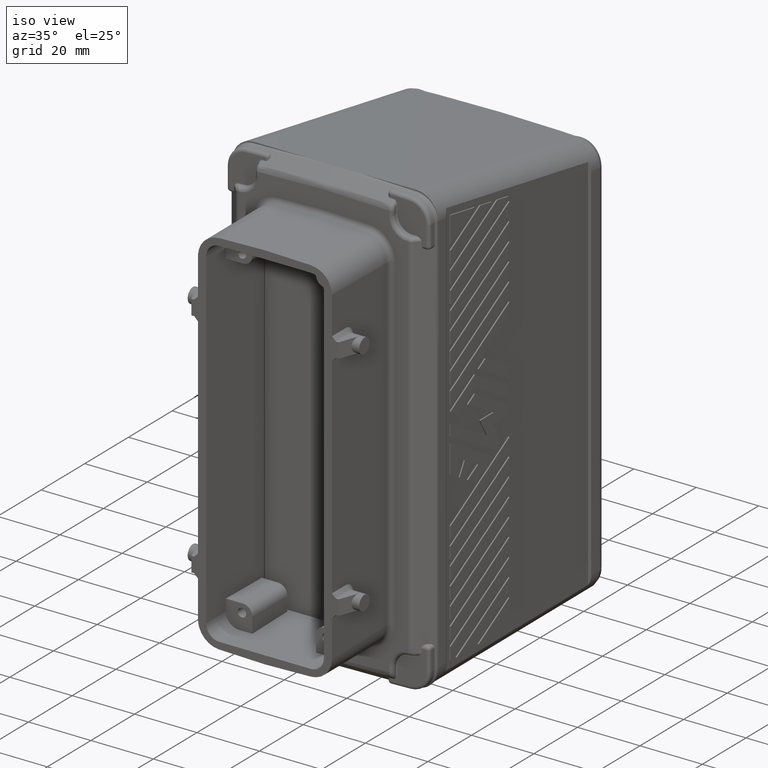
[diagram: clean part render]
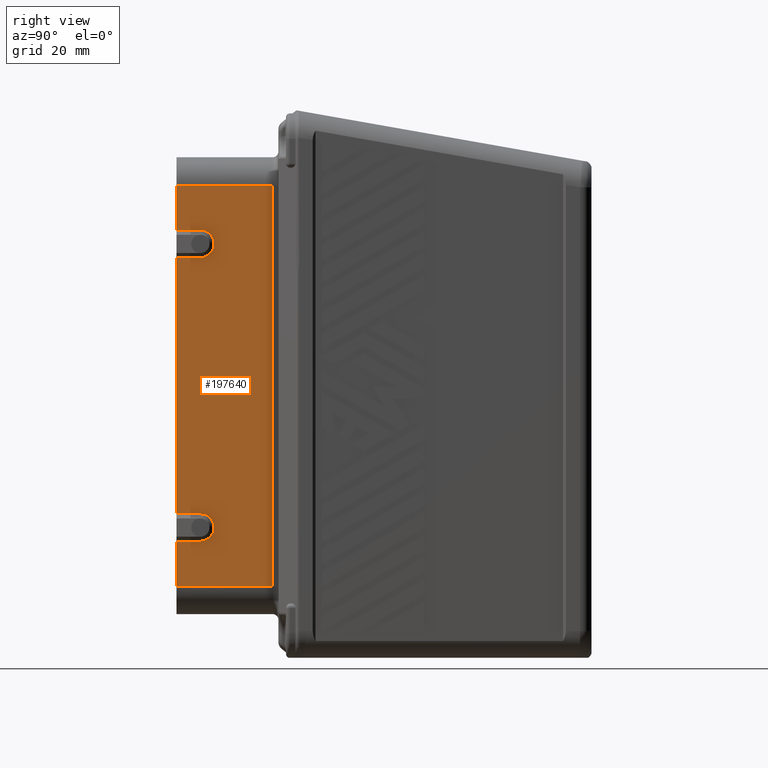
[diagram: tour spotlight — one face highlighted and labeled with its STEP entity id]
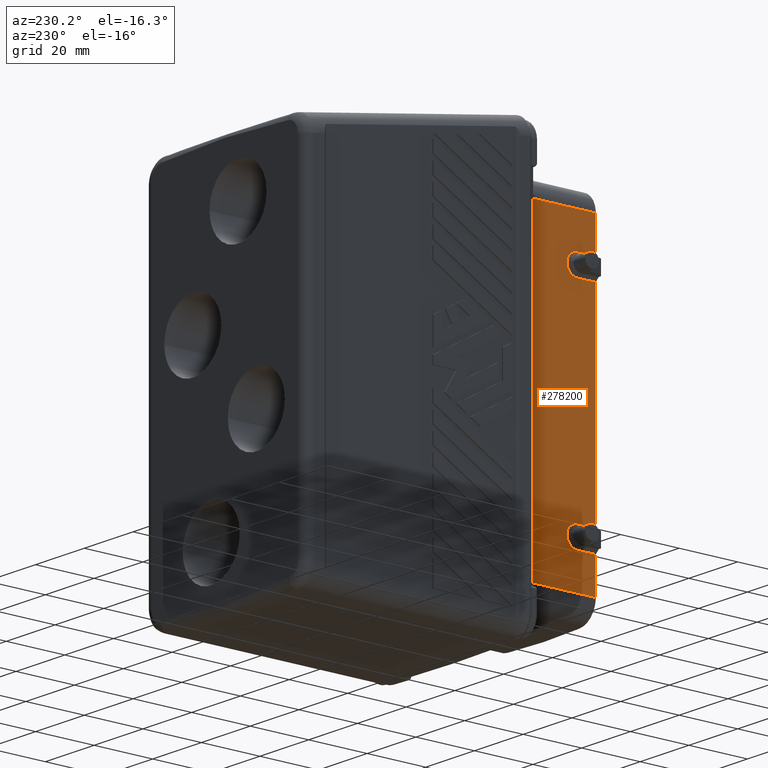
[diagram: tour spotlight — one face highlighted and labeled with its STEP entity id]
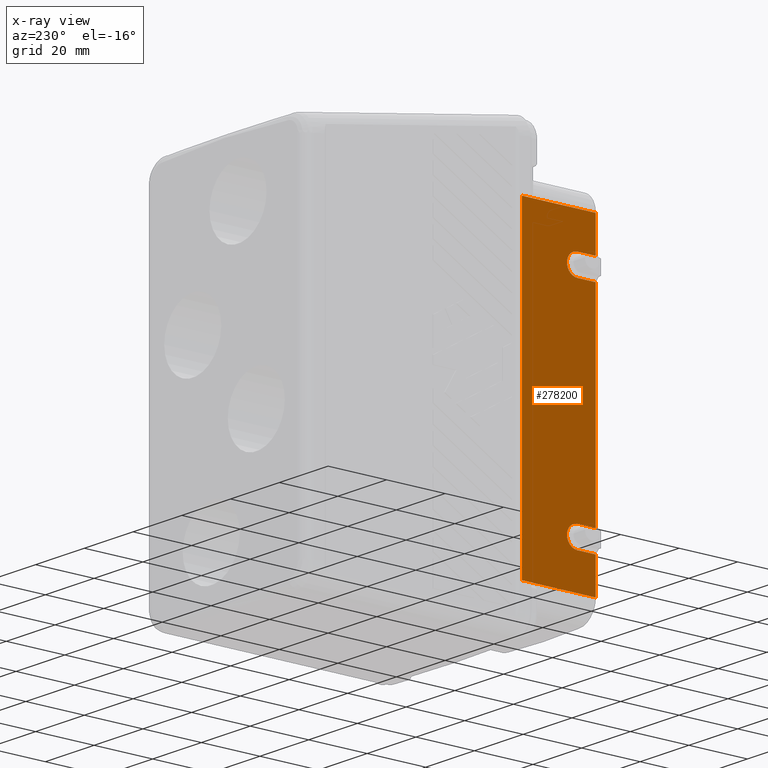
[diagram: x-ray of the same camera — body ghosted, this tour face saturated]
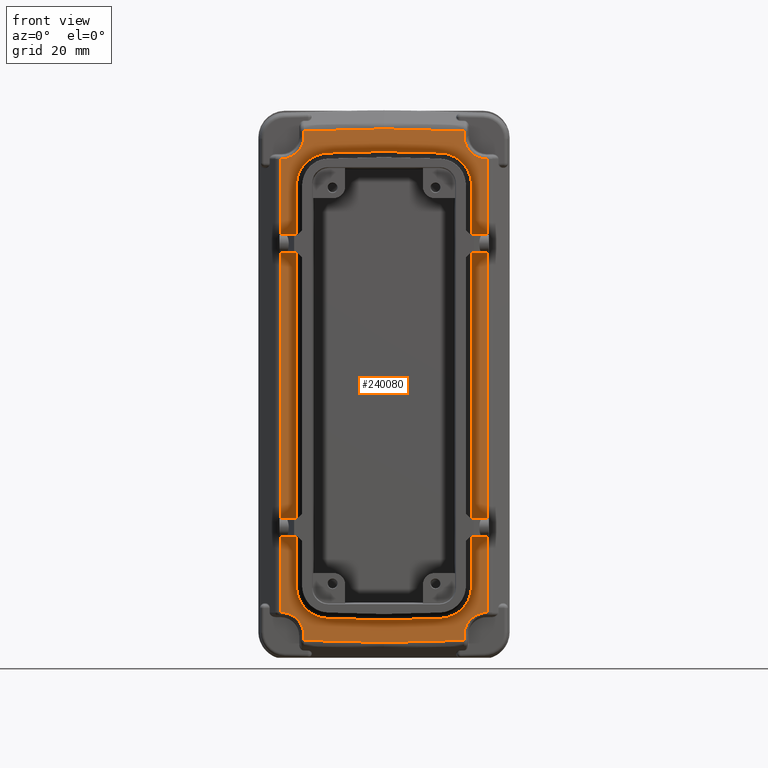
[diagram: tour spotlight — one face highlighted and labeled with its STEP entity id]
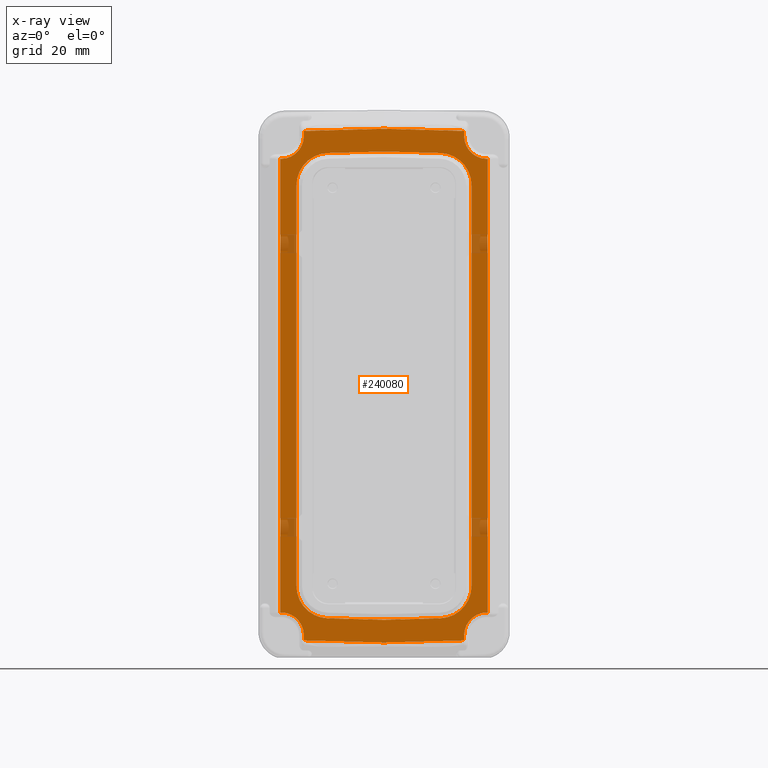
[diagram: x-ray of the same camera — body ghosted, this tour face saturated]
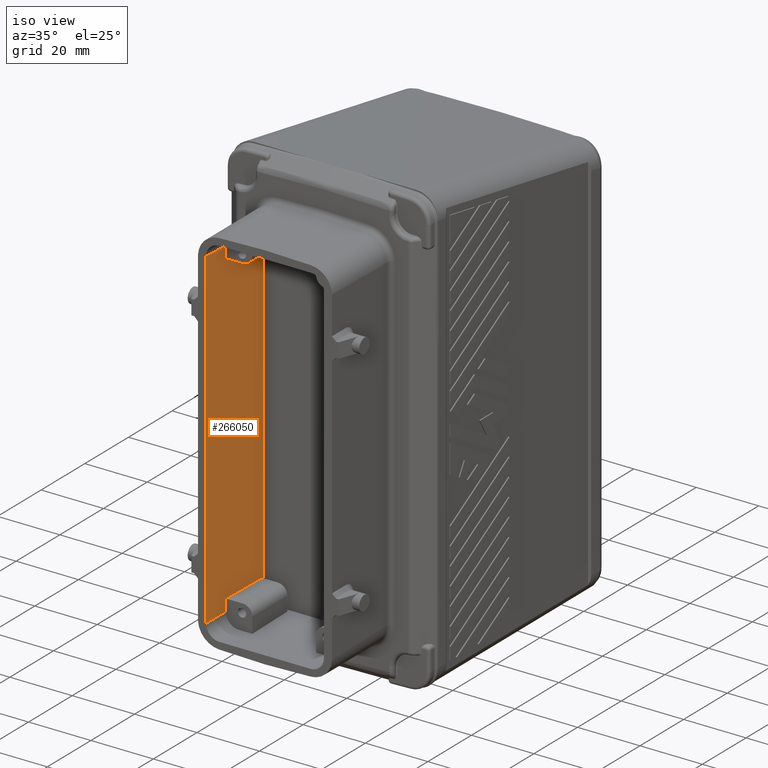
[diagram: tour spotlight — one face highlighted and labeled with its STEP entity id]
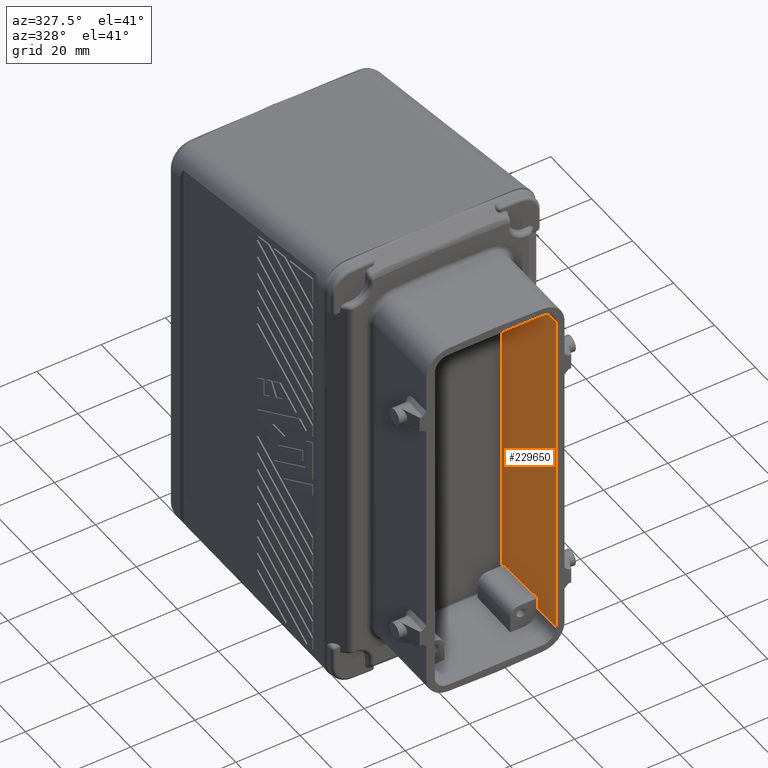
[diagram: tour spotlight — one face highlighted and labeled with its STEP entity id]
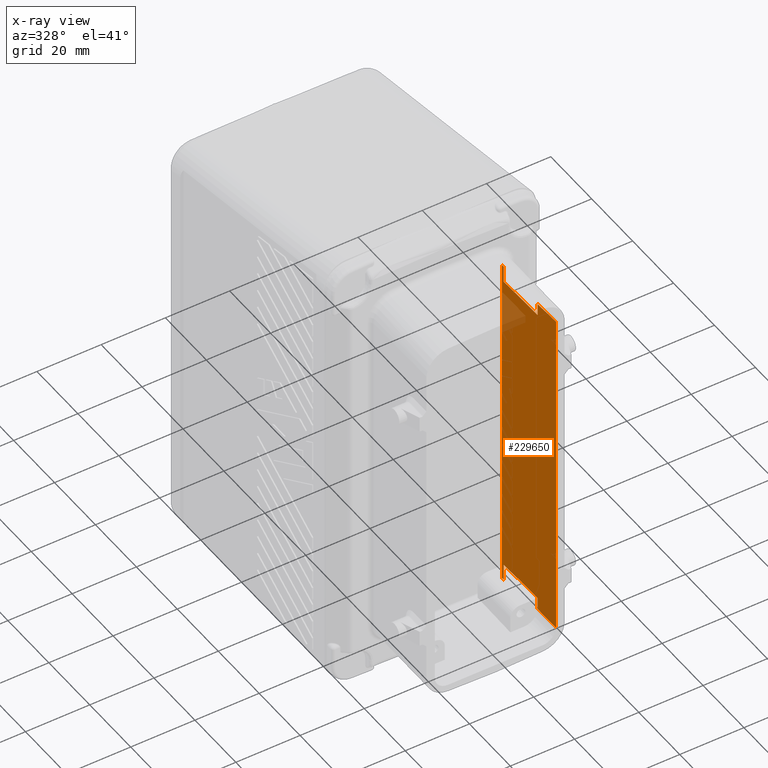
[diagram: x-ray of the same camera — body ghosted, this tour face saturated]
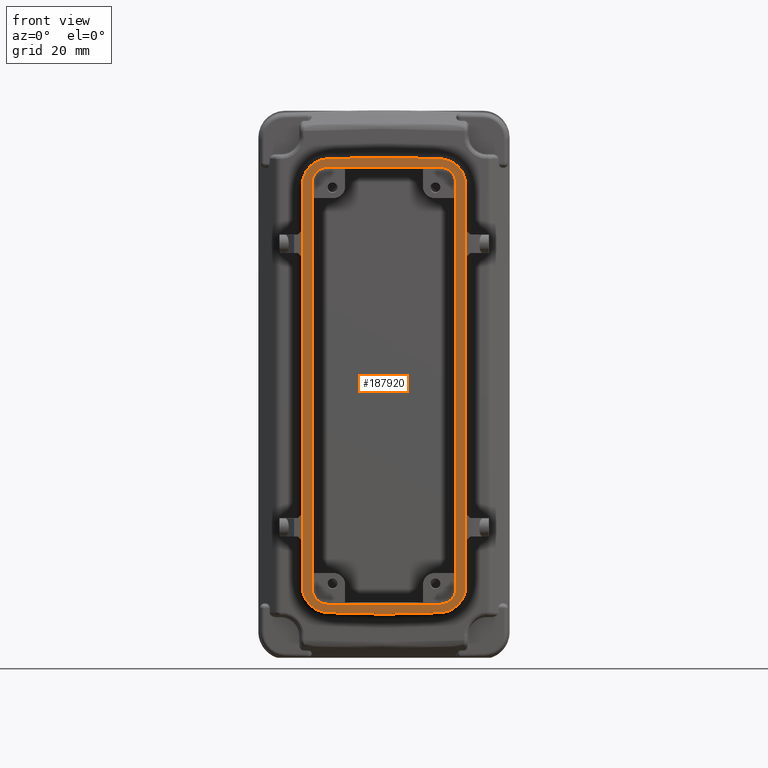
[diagram: tour spotlight — one face highlighted and labeled with its STEP entity id]
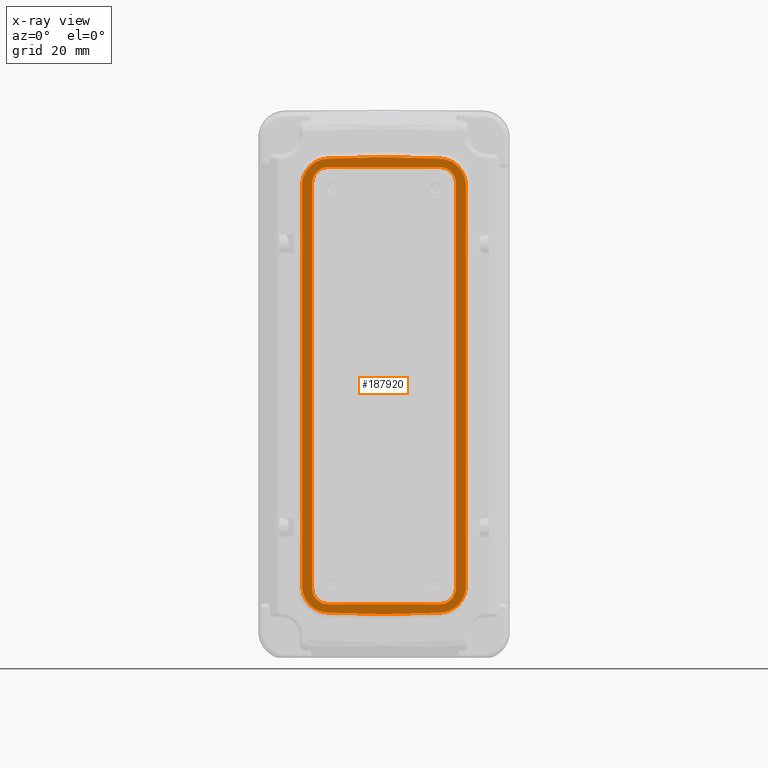
[diagram: x-ray of the same camera — body ghosted, this tour face saturated]
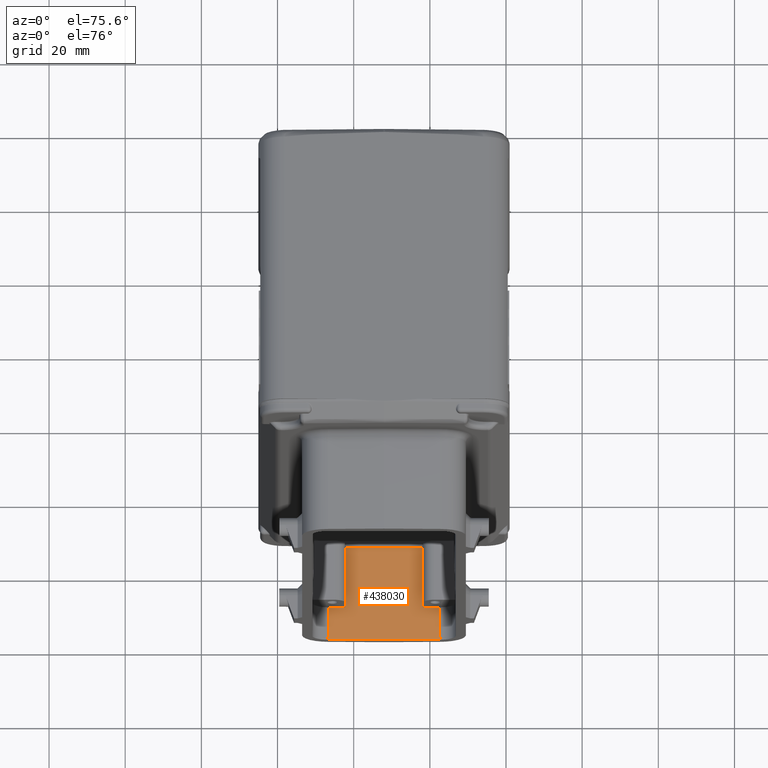
[diagram: tour spotlight — one face highlighted and labeled with its STEP entity id]
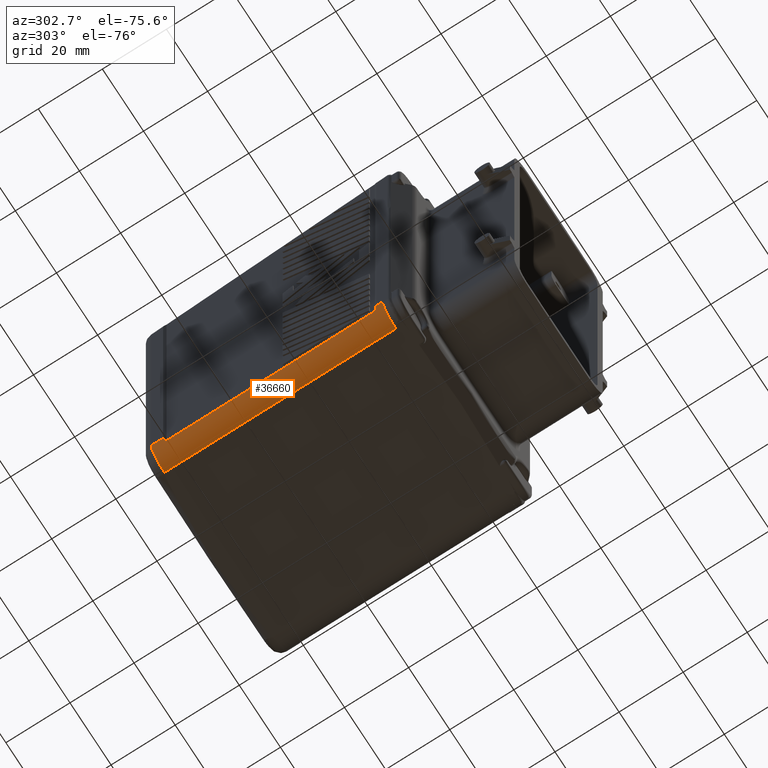
[diagram: tour spotlight — one face highlighted and labeled with its STEP entity id]
A machine part: a face-by-face anatomy tour. The part has 699 B-rep faces; the first image is the clean iso view, then the 8 largest visible faces are spotlighted one at a time (largest first), each with its STEP entity span.

Face 1 — right view, entity #197640. In plain terms, the highlighted planar face has unit normal (1, 0, 0).
Definition (entity closure, byte-faithful):
#185880=CARTESIAN_POINT('',(68.1204348649359,26.0366080000222,
-37.5984603858274));
#185890=VERTEX_POINT('',#185880);
#185920=CARTESIAN_POINT('',(68.1204348649357,26.0366080000222,
-41.1984603858275));
#185930=DIRECTION('',(-1.,-3.05067303190938E-30,-2.85363892759248E-14));
#185940=DIRECTION('',(-2.85363892759248E-14,0.,1.));
#185950=AXIS2_PLACEMENT_3D('',#185920,#185930,#185940);
#185960=CIRCLE('',#185950,3.60000000000042);
#185970=CARTESIAN_POINT('',(68.1204348649361,26.0366080000222,
-44.7984603858276));
#185980=VERTEX_POINT('',#185970);
#185990=EDGE_CURVE('',#185890,#185980,#185960,.T.);
#188810=CARTESIAN_POINT('',(68.1204348649357,19.782638993469,
-44.7984603858253));
#188820=VERTEX_POINT('',#188810);
#188890=CARTESIAN_POINT('',(68.1204348649349,19.782638993469,
-37.5984603858269));
#188900=VERTEX_POINT('',#188890);
#190660=CARTESIAN_POINT('',(68.1204348649356,22.9096234967456,
-37.5984603858276));
#190670=DIRECTION('',(1.0230539864585E-30,1.,-1.22464679914715E-16));
#190680=VECTOR('',#190670,1.);
#190690=LINE('',#190660,#190680);
#190700=EDGE_CURVE('',#188900,#185890,#190690,.T.);
#192170=CARTESIAN_POINT('',(68.1204348649357,22.9096234967456,
-44.7984603858274));
#192180=DIRECTION('',(-1.0230539864585E-30,-1.,1.22464679914715E-16));
#192190=VECTOR('',#192180,1.);
#192200=LINE('',#192170,#192190);
#192210=EDGE_CURVE('',#185980,#188820,#192200,.T.);
#196830=CARTESIAN_POINT('',(68.1204348649355,19.715688001193,
-25.9534603858265));
#196840=DIRECTION('',(1.,2.40356057059527E-31,1.03541961112002E-14));
#196850=DIRECTION('',(1.03541961112002E-14,0.,-1.));
#196860=AXIS2_PLACEMENT_3D('',#196830,#196840,#196850);
#196870=PLANE('',#196860);
#196880=ORIENTED_EDGE('',*,*,#190700,.T.);
#196890=CARTESIAN_POINT('',(68.1204348649462,19.7826389934782,
-10.9672958031298));
#196900=DIRECTION('',(-1.03541961112002E-14,-2.41722350651733E-14,1.));
#196910=VECTOR('',#196900,1.);
#196920=LINE('',#196890,#196910);
#196930=CARTESIAN_POINT('',(68.120434864937,19.7826389934766,
29.6899547671723));
#196940=VERTEX_POINT('',#196930);
#196950=EDGE_CURVE('',#188900,#196940,#196920,.T.);
#196960=ORIENTED_EDGE('',*,*,#196950,.F.);
#196970=CARTESIAN_POINT('',(68.1204348649349,22.9096234967532,
29.6899547671702));
#196980=DIRECTION('',(-1.0230539864585E-30,-1.,1.22464679914715E-16));
#196990=VECTOR('',#196980,1.);
#197000=LINE('',#196970,#196990);
#197010=CARTESIAN_POINT('',(68.120434864935,26.0366080000298,
29.6899547671697));
#197020=VERTEX_POINT('',#197010);
#197030=EDGE_CURVE('',#197020,#196940,#197000,.T.);
#197040=ORIENTED_EDGE('',*,*,#197030,.T.);
#197050=CARTESIAN_POINT('',(68.1204348649349,26.0366080000298,
33.2899547671701));
#197060=DIRECTION('',(-1.,-3.05067303190938E-30,-2.85363892759248E-14));
#197070=DIRECTION('',(-2.85363892759248E-14,0.,1.));
#197080=AXIS2_PLACEMENT_3D('',#197050,#197060,#197070);
#197090=CIRCLE('',#197080,3.60000000000042);
#197100=CARTESIAN_POINT('',(68.1204348649348,26.0366080000298,
36.8899547671706));
#197110=VERTEX_POINT('',#197100);
#197120=EDGE_CURVE('',#197110,#197020,#197090,.T.);
#197130=ORIENTED_EDGE('',*,*,#197120,.T.);
#197140=CARTESIAN_POINT('',(68.1204348649349,22.9096234967532,
36.8899547671701));
#197150=DIRECTION('',(1.0230539864585E-30,1.,-1.22464679914715E-16));
#197160=VECTOR('',#197150,1.);
#197170=LINE('',#197140,#197160);
#197180=CARTESIAN_POINT('',(68.1204348649349,19.7826389934766,
36.889954767167));
#197190=VERTEX_POINT('',#197180);
#197200=EDGE_CURVE('',#197190,#197110,#197170,.T.);
#197210=ORIENTED_EDGE('',*,*,#197200,.T.);
#197220=CARTESIAN_POINT('',(68.1204348649411,19.7826389934782,
9.53270419687026));
#197230=DIRECTION('',(-1.03541961112002E-14,-2.41722350651733E-14,1.));
#197240=VECTOR('',#197230,1.);
#197250=LINE('',#197220,#197240);
#197260=CARTESIAN_POINT('',(68.1204348649407,19.7826389934688,
48.654455752932));
#197270=VERTEX_POINT('',#197260);
#197280=EDGE_CURVE('',#197190,#197270,#197250,.T.);
#197290=ORIENTED_EDGE('',*,*,#197280,.F.);
#197300=CARTESIAN_POINT('',(68.1204348649407,20.0000000000298,
48.654455752932));
#197310=DIRECTION('',(-2.40356057059527E-31,1.,1.62312834311911E-32));
#197320=VECTOR('',#197310,1.);
#197330=LINE('',#197300,#197320);
#197340=CARTESIAN_POINT('',(68.1204348649407,45.0366080000316,
48.654455752932));
#197350=VERTEX_POINT('',#197340);
#197360=EDGE_CURVE('',#197270,#197350,#197330,.T.);
#197370=ORIENTED_EDGE('',*,*,#197360,.F.);
#197380=CARTESIAN_POINT('',(68.1204348649357,45.036608000024,
-41.4534603858269));
#197390=DIRECTION('',(-1.03541961112002E-14,2.05103835357463E-29,1.));
#197400=VECTOR('',#197390,1.);
#197410=LINE('',#197380,#197400);
#197420=CARTESIAN_POINT('',(68.1204348649462,45.036608000024,
-56.5706321937552));
#197430=VERTEX_POINT('',#197420);
#197440=EDGE_CURVE('',#197430,#197350,#197410,.T.);
#197450=ORIENTED_EDGE('',*,*,#197440,.T.);
#197460=CARTESIAN_POINT('',(68.1204348649462,20.0000000000222,
-56.5706321937552));
#197470=DIRECTION('',(-2.40356057059527E-31,1.,1.62312834311911E-32));
#197480=VECTOR('',#197470,1.);
#197490=LINE('',#197460,#197480);
#197500=CARTESIAN_POINT('',(68.1204348649462,19.7826389934702,
-56.5706321937552));
#197510=VERTEX_POINT('',#197500);
#197520=EDGE_CURVE('',#197510,#197430,#197490,.T.);
#197530=ORIENTED_EDGE('',*,*,#197520,.T.);
#197540=CARTESIAN_POINT('',(68.1204348649388,19.782638993469,
-37.4572958031299));
#197550=DIRECTION('',(-1.2603882944068E-13,1.22464679914716E-16,-1.));
#197560=VECTOR('',#197550,1.);
#197570=LINE('',#197540,#197560);
#197580=EDGE_CURVE('',#188820,#197510,#197570,.T.);
#197590=ORIENTED_EDGE('',*,*,#197580,.T.);
#197600=ORIENTED_EDGE('',*,*,#192210,.T.);
#197610=ORIENTED_EDGE('',*,*,#185990,.T.);
#197620=EDGE_LOOP('',(#197610,#197600,#197590,#197530,#197450,#197370,
#197290,#197210,#197130,#197040,#196960,#196880));
#197630=FACE_OUTER_BOUND('',#197620,.T.);
#197640=ADVANCED_FACE('',(#197630),#196870,.T.);

Face 2 — auxiliary view, entity #278200. An x-ray twin of the same camera follows (body ghosted, this face saturated) — the face is partly hidden behind the body. In plain terms, the highlighted planar face has unit normal (-1, -0, -0).
Definition (entity closure, byte-faithful):
#212420=CARTESIAN_POINT('',(25.1249826717835,45.036608000024,
48.654455752932));
#212430=VERTEX_POINT('',#212420);
#276770=CARTESIAN_POINT('',(25.1249826717887,45.036608000024,
-56.5706322061951));
#276780=VERTEX_POINT('',#276770);
#276980=CARTESIAN_POINT('',(25.1249826717887,20.0000000000222,
-56.5706322061951));
#276990=DIRECTION('',(-2.40356057059527E-31,1.,1.62312834311912E-32));
#277000=VECTOR('',#276990,1.);
#277010=LINE('',#276980,#277000);
#277020=CARTESIAN_POINT('',(25.1249826717887,19.7826389097134,
-56.5706322061951));
#277030=VERTEX_POINT('',#277020);
#277040=EDGE_CURVE('',#277030,#276780,#277010,.T.);
#277260=CARTESIAN_POINT('',(25.124982671783,19.715688001193,
-46.4534603858266));
#277270=DIRECTION('',(-1.,-2.40356057059527E-31,-2.88336182627288E-15));
#277280=DIRECTION('',(-2.88336182627288E-15,0.,1.));
#277290=AXIS2_PLACEMENT_3D('',#277260,#277270,#277280);
#277300=PLANE('',#277290);
#277310=CARTESIAN_POINT('',(25.1249826717828,22.9096234967532,
29.6899547671704));
#277320=DIRECTION('',(-5.91645678915759E-31,1.,1.22464679914715E-16));
#277330=VECTOR('',#277320,1.);
#277340=LINE('',#277310,#277330);
#277350=CARTESIAN_POINT('',(25.1249821967273,19.7826389934766,
29.6899550046982));
#277360=VERTEX_POINT('',#277350);
#277370=CARTESIAN_POINT('',(25.1249826717823,26.0366080000298,
29.6899547671699));
#277380=VERTEX_POINT('',#277370);
#277390=EDGE_CURVE('',#277360,#277380,#277340,.T.);
#277400=ORIENTED_EDGE('',*,*,#277390,.T.);
#277410=CARTESIAN_POINT('',(25.1249826717836,19.7826389097042,
-16.9572958031298));
#277420=DIRECTION('',(-2.88336182627288E-15,-2.1838096442105E-14,1.));
#277430=VECTOR('',#277420,1.);
#277440=LINE('',#277410,#277430);
#277450=CARTESIAN_POINT('',(25.1249823137013,19.7826389728524,
-37.598460743909));
#277460=VERTEX_POINT('',#277450);
#277470=EDGE_CURVE('',#277460,#277360,#277440,.T.);
#277480=ORIENTED_EDGE('',*,*,#277470,.T.);
#277490=CARTESIAN_POINT('',(25.124982671783,22.9096234967456,
-37.5984603858273));
#277500=DIRECTION('',(5.91645678915759E-31,-1.,-1.22464679914715E-16));
#277510=VECTOR('',#277500,1.);
#277520=LINE('',#277490,#277510);
#277530=CARTESIAN_POINT('',(25.1249826717828,26.0366080000222,
-37.598460385827));
#277540=VERTEX_POINT('',#277530);
#277550=EDGE_CURVE('',#277540,#277460,#277520,.T.);
#277560=ORIENTED_EDGE('',*,*,#277550,.T.);
#277570=CARTESIAN_POINT('',(25.124982671783,26.0366080000222,
-41.1984603858273));
#277580=DIRECTION('',(1.,1.23259516440783E-32,2.10623481404942E-14));
#277590=DIRECTION('',(2.10623481404942E-14,0.,-1.));
#277600=AXIS2_PLACEMENT_3D('',#277570,#277580,#277590);
#277610=CIRCLE('',#277600,3.60000000000042);
#277620=CARTESIAN_POINT('',(25.1249826717828,26.0366080000222,
-44.7984603858274));
#277630=VERTEX_POINT('',#277620);
#277640=EDGE_CURVE('',#277630,#277540,#277610,.T.);
#277650=ORIENTED_EDGE('',*,*,#277640,.T.);
#277660=CARTESIAN_POINT('',(25.124982671783,22.9096234548633,
-44.7984603858272));
#277670=DIRECTION('',(-5.91645678915759E-31,1.,1.22464679914715E-16));
#277680=VECTOR('',#277670,1.);
#277690=LINE('',#277660,#277680);
#277700=CARTESIAN_POINT('',(25.1249821967798,19.782638993469,
-44.7984599108023));
#277710=VERTEX_POINT('',#277700);
#277720=EDGE_CURVE('',#277710,#277630,#277690,.T.);
#277730=ORIENTED_EDGE('',*,*,#277720,.T.);
#277740=CARTESIAN_POINT('',(25.1249826717886,19.7826389097042,
-37.4572958031299));
#277750=DIRECTION('',(-2.88336182627288E-15,-2.1838096442105E-14,1.));
#277760=VECTOR('',#277750,1.);
#277770=LINE('',#277740,#277760);
#277780=EDGE_CURVE('',#277030,#277710,#277770,.T.);
#277790=ORIENTED_EDGE('',*,*,#277780,.T.);
#277800=ORIENTED_EDGE('',*,*,#277040,.F.);
#277810=CARTESIAN_POINT('',(25.124982671783,45.036608000024,
-41.4534603858269));
#277820=DIRECTION('',(-2.88336182627288E-15,2.05103835357463E-29,1.));
#277830=VECTOR('',#277820,1.);
#277840=LINE('',#277810,#277830);
#277850=EDGE_CURVE('',#276780,#212430,#277840,.T.);
#277860=ORIENTED_EDGE('',*,*,#277850,.F.);
#277870=CARTESIAN_POINT('',(25.1249826717835,20.0000000000298,
48.654455752932));
#277880=DIRECTION('',(2.40356057059527E-31,-1.,-1.62312834311911E-32));
#277890=VECTOR('',#277880,1.);
#277900=LINE('',#277870,#277890);
#277910=CARTESIAN_POINT('',(25.1249826717835,19.7826389097111,
48.654455752932));
#277920=VERTEX_POINT('',#277910);
#277930=EDGE_CURVE('',#212430,#277920,#277900,.T.);
#277940=ORIENTED_EDGE('',*,*,#277930,.F.);
#277950=CARTESIAN_POINT('',(25.1249826717836,19.7826389097118,
9.53270419687026));
#277960=DIRECTION('',(-2.88336182627288E-15,-2.1838096442105E-14,1.));
#277970=VECTOR('',#277960,1.);
#277980=LINE('',#277950,#277970);
#277990=CARTESIAN_POINT('',(25.1249821967264,19.7826389934766,
36.8899545296421));
#278000=VERTEX_POINT('',#277990);
#278010=EDGE_CURVE('',#278000,#277920,#277980,.T.);
#278020=ORIENTED_EDGE('',*,*,#278010,.T.);
#278030=CARTESIAN_POINT('',(25.1249826717828,22.9096234967532,
36.8899547671702));
#278040=DIRECTION('',(5.91645678915759E-31,-1.,-1.22464679914715E-16));
#278050=VECTOR('',#278040,1.);
#278060=LINE('',#278030,#278050);
#278070=CARTESIAN_POINT('',(25.1249826717827,26.0366080000298,
36.8899547671703));
#278080=VERTEX_POINT('',#278070);
#278090=EDGE_CURVE('',#278080,#278000,#278060,.T.);
#278100=ORIENTED_EDGE('',*,*,#278090,.T.);
#278110=CARTESIAN_POINT('',(25.1249826717828,26.0366080000298,
33.28995476717));
#278120=DIRECTION('',(1.,-2.56996091779033E-30,-2.1065198466273E-14));
#278130=DIRECTION('',(-2.1065198466273E-14,0.,-1.));
#278140=AXIS2_PLACEMENT_3D('',#278110,#278120,#278130);
#278150=CIRCLE('',#278140,3.60000000000042);
#278160=EDGE_CURVE('',#277380,#278080,#278150,.T.);
#278170=ORIENTED_EDGE('',*,*,#278160,.T.);
#278180=EDGE_LOOP('',(#278170,#278100,#278020,#277940,#277860,#277800,
#277790,#277730,#277650,#277560,#277480,#277400));
#278190=FACE_OUTER_BOUND('',#278180,.T.);
#278200=ADVANCED_FACE('',(#278190),#277300,.T.);

Face 3 — front view, entity #240080. An x-ray twin of the same camera follows (body ghosted, this face saturated) — the face is partly hidden behind the body. In plain terms, the highlighted planar face has unit normal (0, 1, -0).
Definition (entity closure, byte-faithful):
#139350=CARTESIAN_POINT('',(25.5883502731805,46.5366080000271,
62.9302468059188));
#139360=VERTEX_POINT('',#139350);
#155530=CARTESIAN_POINT('',(25.5883507061523,46.5366080062662,
61.5974777384774));
#155540=VERTEX_POINT('',#155530);
#155570=CARTESIAN_POINT('',(19.5883507742015,46.536608000027,
61.5974777747414));
#155580=DIRECTION('',(2.67831531002758E-14,-1.,-6.60193418565337E-14));
#155590=DIRECTION('',(0.,-6.60193418565337E-14,1.));
#155600=AXIS2_PLACEMENT_3D('',#155570,#155580,#155590);
#155610=CIRCLE('',#155600,6.00000004513842);
#155620=CARTESIAN_POINT('',(19.5883508104658,46.5366079540106,
55.5974777332367));
#155630=VERTEX_POINT('',#155620);
#155640=EDGE_CURVE('',#155630,#155540,#155610,.T.);
#175740=CARTESIAN_POINT('',(46.6227087683561,46.5366080000313,
63.4895479082226));
#175750=VERTEX_POINT('',#175740);
#176580=CARTESIAN_POINT('',(67.6570672635316,46.5366080000271,
62.9302468059198));
#176590=VERTEX_POINT('',#176580);
#176620=CARTESIAN_POINT('',(67.6570672635316,46.5366080000271,
62.9302468059198));
#176630=DIRECTION('',(-0.999646676442323,1.99151852319075E-13,
0.0265804867866927));
#176640=VECTOR('',#176630,1.);
#176650=LINE('',#176620,#176640);
#176660=EDGE_CURVE('',#176590,#175750,#176650,.T.);
#177510=CARTESIAN_POINT('',(19.4457407790913,46.5366079474425,
-63.5059833511476));
#177520=VERTEX_POINT('',#177510);
#212310=CARTESIAN_POINT('',(31.9024786111666,46.5366080000316,
57.1515430152242));
#212320=VERTEX_POINT('',#212310);
#212510=CARTESIAN_POINT('',(23.6249826717835,46.5366080000316,
48.654455752932));
#212520=VERTEX_POINT('',#212510);
#212550=CARTESIAN_POINT('',(32.1249826717835,46.5366080000316,
48.654455752932));
#212560=DIRECTION('',(2.40356057059527E-31,-1.,-1.62312834311911E-32));
#212570=DIRECTION('',(-1.,-2.40356057059527E-31,-3.90128728653672E-63));
#212580=AXIS2_PLACEMENT_3D('',#212550,#212560,#212570);
#212590=CIRCLE('',#212580,8.5);
#212600=EDGE_CURVE('',#212320,#212520,#212590,.T.);
#212750=CARTESIAN_POINT('',(69.6204348649407,46.5366080000316,
48.654455752932));
#212760=VERTEX_POINT('',#212750);
#212930=CARTESIAN_POINT('',(61.3429389255576,46.5366080000316,
57.1515430152242));
#212940=VERTEX_POINT('',#212930);
#212970=CARTESIAN_POINT('',(61.1204348649407,46.5366080000316,
48.654455752932));
#212980=DIRECTION('',(-2.40356057059527E-31,1.,1.62312834311911E-32));
#212990=DIRECTION('',(1.,2.40356057059527E-31,3.90128728653672E-63));
#213000=AXIS2_PLACEMENT_3D('',#212970,#212980,#212990);
#213010=CIRCLE('',#213000,8.50000000000001);
#213020=EDGE_CURVE('',#212940,#212760,#213010,.T.);
#213260=CARTESIAN_POINT('',(46.6227087683591,46.5366080000316,
57.5370058076009));
#213270=VERTEX_POINT('',#213260);
#213300=CARTESIAN_POINT('',(-0.0599999999957389,46.5366080000316,
58.759435558046));
#213310=DIRECTION('',(-0.999657324975557,8.01437898917546E-19,
0.0261769483078685));
#213320=VECTOR('',#213310,1.);
#213330=LINE('',#213300,#213320);
#213340=EDGE_CURVE('',#212940,#213270,#213330,.T.);
#238170=CARTESIAN_POINT('',(86.2771853051725,46.5366080000316,
-65.5057129756393));
#238180=DIRECTION('',(4.32918313055769E-43,1.,-2.05541333838009E-29));
#238190=DIRECTION('',(-2.10623481404942E-14,2.05541333838009E-29,1.));
#238200=AXIS2_PLACEMENT_3D('',#238170,#238180,#238190);
#238210=PLANE('',#238200);
#238220=CARTESIAN_POINT('',(69.6204348649357,46.536608000024,
-41.4534603858269));
#238230=DIRECTION('',(-1.03541961112002E-14,3.06161699786941E-17,1.));
#238240=VECTOR('',#238230,1.);
#238250=LINE('',#238220,#238240);
#238260=CARTESIAN_POINT('',(69.6204348649462,46.536608000024,
-56.5706321937552));
#238270=VERTEX_POINT('',#238260);
#238280=EDGE_CURVE('',#238270,#212760,#238250,.T.);
#238290=ORIENTED_EDGE('',*,*,#238280,.F.);
#238300=ORIENTED_EDGE('',*,*,#213020,.T.);
#238310=ORIENTED_EDGE('',*,*,#213340,.F.);
#238320=CARTESIAN_POINT('',(-0.0599999999957391,46.5366080000316,
56.3145760571554));
#238330=DIRECTION('',(-0.999657324975557,-8.01437898916528E-19,
-0.0261769483078759));
#238340=VECTOR('',#238330,1.);
#238350=LINE('',#238320,#238340);
#238360=EDGE_CURVE('',#213270,#212320,#238350,.T.);
#238370=ORIENTED_EDGE('',*,*,#238360,.F.);
#238380=ORIENTED_EDGE('',*,*,#212600,.F.);
#238390=CARTESIAN_POINT('',(23.624982671783,46.536608000024,
-41.4534603858269));
#238400=DIRECTION('',(-2.88336182627288E-15,3.06161699786941E-17,1.));
#238410=VECTOR('',#238400,1.);
#238420=LINE('',#238390,#238410);
#238430=CARTESIAN_POINT('',(23.6249826717887,46.536608000024,
-56.5706322061951));
#238440=VERTEX_POINT('',#238430);
#238450=EDGE_CURVE('',#238440,#212520,#238420,.T.);
#238460=ORIENTED_EDGE('',*,*,#238450,.T.);
#238470=CARTESIAN_POINT('',(32.1249826717887,46.536608000024,
-56.5706322061951));
#238480=DIRECTION('',(-2.40356057059527E-31,1.,1.62312834311912E-32));
#238490=DIRECTION('',(1.,2.40356057059527E-31,3.90128728653675E-63));
#238500=AXIS2_PLACEMENT_3D('',#238470,#238480,#238490);
#238510=CIRCLE('',#238500,8.5);
#238520=CARTESIAN_POINT('',(31.9024786111717,46.536608000024,
-65.0677194684873));
#238530=VERTEX_POINT('',#238520);
#238540=EDGE_CURVE('',#238530,#238440,#238510,.T.);
#238550=ORIENTED_EDGE('',*,*,#238540,.T.);
#238560=CARTESIAN_POINT('',(-0.0599999999957392,46.536608000024,
-64.2307525104184));
#238570=DIRECTION('',(0.999657324975557,-8.01437898917772E-19,
-0.0261769483078759));
#238580=VECTOR('',#238570,1.);
#238590=LINE('',#238560,#238580);
#238600=CARTESIAN_POINT('',(46.6227085308365,46.536608000024,
-65.4531822546441));
#238610=VERTEX_POINT('',#238600);
#238620=EDGE_CURVE('',#238530,#238610,#238590,.T.);
#238630=ORIENTED_EDGE('',*,*,#238620,.F.);
#238640=CARTESIAN_POINT('',(-0.059999999995739,46.536608000024,
-66.6756119988698));
#238650=DIRECTION('',(0.999657324975557,8.01437898916528E-19,
0.0261769483078759));
#238660=VECTOR('',#238650,1.);
#238670=LINE('',#238640,#238660);
#238680=CARTESIAN_POINT('',(61.3429389255632,46.536608000024,
-65.0677194560474));
#238690=VERTEX_POINT('',#238680);
#238700=EDGE_CURVE('',#238610,#238690,#238670,.T.);
#238710=ORIENTED_EDGE('',*,*,#238700,.F.);
#238720=CARTESIAN_POINT('',(61.1204348649462,46.536608000024,
-56.5706321937552));
#238730=DIRECTION('',(-2.40356057059527E-31,1.,1.62312834311911E-32));
#238740=DIRECTION('',(1.,2.40356057059527E-31,3.90128728653672E-63));
#238750=AXIS2_PLACEMENT_3D('',#238720,#238730,#238740);
#238760=CIRCLE('',#238750,8.50000000000001);
#238770=EDGE_CURVE('',#238270,#238690,#238760,.T.);
#238780=ORIENTED_EDGE('',*,*,#238770,.T.);
#238790=EDGE_LOOP('',(#238780,#238710,#238630,#238550,#238460,#238380,
#238370,#238310,#238300,#238290));
#238800=FACE_BOUND('',#238790,.T.);
#238810=CARTESIAN_POINT('',(20.5883508565705,46.5366080000275,
55.5974777384828));
#238820=DIRECTION('',(-0.999999999999999,-4.60168705260525E-8,
-5.24609039104831E-9));
#238830=VECTOR('',#238820,1.);
#238840=LINE('',#238810,#238830);
#238850=CARTESIAN_POINT('',(19.4457407790874,46.5366079474481,
55.5974777324886));
#238860=VERTEX_POINT('',#238850);
#238870=EDGE_CURVE('',#155630,#238860,#238840,.T.);
#238880=ORIENTED_EDGE('',*,*,#238870,.T.);
#238890=ORIENTED_EDGE('',*,*,#155640,.F.);
#238900=CARTESIAN_POINT('',(25.5883507061526,46.5366080062662,
61.5974747382217));
#238910=DIRECTION('',(-1.04287170564412E-7,6.23901595941591E-9,
0.999999999999995));
#238920=VECTOR('',#238910,1.);
#238930=LINE('',#238900,#238920);
#238940=EDGE_CURVE('',#155540,#139360,#238930,.T.);
#238950=ORIENTED_EDGE('',*,*,#238940,.F.);
#238960=CARTESIAN_POINT('',(25.5883502731805,46.5366080000271,
62.9302468059188));
#238970=DIRECTION('',(0.999646676442322,1.99151852319075E-13,
0.0265804867867385));
#238980=VECTOR('',#238970,1.);
#238990=LINE('',#238960,#238980);
#239000=EDGE_CURVE('',#139360,#175750,#238990,.T.);
#239010=ORIENTED_EDGE('',*,*,#239000,.F.);
#239020=ORIENTED_EDGE('',*,*,#176660,.T.);
#239030=CARTESIAN_POINT('',(67.6570668305595,46.5366080062662,
61.5974747382227));
#239040=DIRECTION('',(1.0428708526364E-7,6.23901595941604E-9,
0.999999999999995));
#239050=VECTOR('',#239040,1.);
#239060=LINE('',#239030,#239050);
#239070=CARTESIAN_POINT('',(67.6570668305599,46.5366080062662,
61.5974777384784));
#239080=VERTEX_POINT('',#239070);
#239090=EDGE_CURVE('',#239080,#176590,#239060,.T.);
#239100=ORIENTED_EDGE('',*,*,#239090,.T.);
#239110=CARTESIAN_POINT('',(73.6570667625105,46.536608000027,
61.5974777747424));
#239120=DIRECTION('',(2.67831531002727E-14,1.,6.60193418565347E-14));
#239130=DIRECTION('',(0.,6.60193418565347E-14,-1.));
#239140=AXIS2_PLACEMENT_3D('',#239110,#239120,#239130);
#239150=CIRCLE('',#239140,6.00000004513814);
#239160=CARTESIAN_POINT('',(73.6570667262467,46.5366079540106,
55.597477733238));
#239170=VERTEX_POINT('',#239160);
#239180=EDGE_CURVE('',#239170,#239080,#239150,.T.);
#239190=ORIENTED_EDGE('',*,*,#239180,.T.);
#239200=CARTESIAN_POINT('',(72.6570666801419,46.5366080000275,
55.597477738484));
#239210=DIRECTION('',(0.999999999999999,-4.60168705260528E-8,
-5.24601265353909E-9));
#239220=VECTOR('',#239210,1.);
#239230=LINE('',#239200,#239220);
#239240=CARTESIAN_POINT('',(73.79967675763,46.5366080000278,
55.5974777324899));
#239250=VERTEX_POINT('',#239240);
#239260=EDGE_CURVE('',#239170,#239250,#239230,.T.);
#239270=ORIENTED_EDGE('',*,*,#239260,.F.);
#239280=CARTESIAN_POINT('',(73.7996767576297,46.5366080000272,
64.5874777385779));
#239290=DIRECTION('',(3.77080905854664E-14,6.51601974329634E-14,-1.));
#239300=VECTOR('',#239290,1.);
#239310=LINE('',#239280,#239300);
#239320=CARTESIAN_POINT('',(73.7996767576256,46.5366079474424,
-63.5059833511464));
#239330=VERTEX_POINT('',#239320);
#239340=EDGE_CURVE('',#239250,#239330,#239310,.T.);
#239350=ORIENTED_EDGE('',*,*,#239340,.F.);
#239360=CARTESIAN_POINT('',(72.6570666801427,46.5366080000218,
-63.5059833571405));
#239370=DIRECTION('',(0.999999999999999,-4.60168378777327E-8,
5.24601420842552E-9));
#239380=VECTOR('',#239370,1.);
#239390=LINE('',#239360,#239380);
#239400=CARTESIAN_POINT('',(73.6570667262474,46.5366079540049,
-63.5059833518945));
#239410=VERTEX_POINT('',#239400);
#239420=EDGE_CURVE('',#239410,#239330,#239390,.T.);
#239430=ORIENTED_EDGE('',*,*,#239420,.T.);
#239440=CARTESIAN_POINT('',(73.6570667625116,46.5366080000218,
-69.5059833933994));
#239450=DIRECTION('',(6.25989812810808E-28,-1.,-6.4835720509803E-28));
#239460=DIRECTION('',(0.,-6.4835720509803E-28,1.));
#239470=AXIS2_PLACEMENT_3D('',#239440,#239450,#239460);
#239480=CIRCLE('',#239470,6.00000004513846);
#239490=CARTESIAN_POINT('',(67.6570668305607,46.5366080062608,
-69.5059833571353));
#239500=VERTEX_POINT('',#239490);
#239510=EDGE_CURVE('',#239410,#239500,#239480,.T.);
#239520=ORIENTED_EDGE('',*,*,#239510,.F.);
#239530=CARTESIAN_POINT('',(67.6570668305604,46.5366080062608,
-69.5059803568796));
#239540=DIRECTION('',(1.04287138576631E-7,6.23904261590863E-9,
-0.999999999999995));
#239550=VECTOR('',#239540,1.);
#239560=LINE('',#239530,#239550);
#239570=CARTESIAN_POINT('',(67.6570669695514,46.5366080145761,
-70.8387524245766));
#239580=VERTEX_POINT('',#239570);
#239590=EDGE_CURVE('',#239500,#239580,#239560,.T.);
#239600=ORIENTED_EDGE('',*,*,#239590,.F.);
#239610=CARTESIAN_POINT('',(67.6570672635325,46.5366080000218,
-70.8387524245767));
#239620=DIRECTION('',(-0.999646676442323,1.99151852319075E-13,
-0.0265804867867119));
#239630=VECTOR('',#239620,1.);
#239640=LINE('',#239610,#239630);
#239650=CARTESIAN_POINT('',(46.622708768357,46.536608000026,
-71.3980535268799));
#239660=VERTEX_POINT('',#239650);
#239670=EDGE_CURVE('',#239580,#239660,#239640,.T.);
#239680=ORIENTED_EDGE('',*,*,#239670,.F.);
#239690=CARTESIAN_POINT('',(25.5883502731835,46.5366080000218,
-70.8387524245776));
#239700=DIRECTION('',(0.999646676442324,1.99151852319075E-13,
-0.0265804867866686));
#239710=VECTOR('',#239700,1.);
#239720=LINE('',#239690,#239710);
#239730=CARTESIAN_POINT('',(25.5883502731835,46.5366080000218,
-70.8387524245776));
#239740=VERTEX_POINT('',#239730);
#239750=EDGE_CURVE('',#239740,#239660,#239720,.T.);
#239760=ORIENTED_EDGE('',*,*,#239750,.T.);
#239770=CARTESIAN_POINT('',(25.5883507061555,46.5366080062608,
-69.5059803568805));
#239780=DIRECTION('',(-1.04287093260588E-7,6.23902662201296E-9,
-0.999999999999995));
#239790=VECTOR('',#239780,1.);
#239800=LINE('',#239770,#239790);
#239810=CARTESIAN_POINT('',(25.5883507061552,46.5366080062608,
-69.5059833571362));
#239820=VERTEX_POINT('',#239810);
#239830=EDGE_CURVE('',#239820,#239740,#239800,.T.);
#239840=ORIENTED_EDGE('',*,*,#239830,.T.);
#239850=CARTESIAN_POINT('',(19.5883507742045,46.5366080000218,
-69.5059833934005));
#239860=DIRECTION('',(3.08097751397589E-28,1.,3.31604223857843E-28));
#239870=DIRECTION('',(0.,3.31604223857843E-28,-1.));
#239880=AXIS2_PLACEMENT_3D('',#239850,#239860,#239870);
#239890=CIRCLE('',#239880,6.00000004513832);
#239900=CARTESIAN_POINT('',(19.5883508104683,46.5366079540049,
-63.5059833518957));
#239910=VERTEX_POINT('',#239900);
#239920=EDGE_CURVE('',#239910,#239820,#239890,.T.);
#239930=ORIENTED_EDGE('',*,*,#239920,.T.);
#239940=CARTESIAN_POINT('',(20.5883508565728,46.5366080000218,
-63.5059833571417));
#239950=DIRECTION('',(-0.999999999999999,-4.60168378777352E-8,
5.24596134832277E-9));
#239960=VECTOR('',#239950,1.);
#239970=LINE('',#239940,#239960);
#239980=EDGE_CURVE('',#239910,#177520,#239970,.T.);
#239990=ORIENTED_EDGE('',*,*,#239980,.F.);
#240000=CARTESIAN_POINT('',(19.4457407790927,46.5366080000218,
-55.5059863571363));
#240010=DIRECTION('',(-6.19316623713013E-14,2.09517962869691E-14,1.));
#240020=VECTOR('',#240010,1.);
#240030=LINE('',#240000,#240020);
#240040=EDGE_CURVE('',#177520,#238860,#240030,.T.);
#240050=ORIENTED_EDGE('',*,*,#240040,.F.);
#240060=EDGE_LOOP('',(#240050,#239990,#239930,#239840,#239760,#239680,
#239600,#239520,#239430,#239350,#239270,#239190,#239100,#239020,#239010,
#238950,#238890,#238880));
#240070=FACE_OUTER_BOUND('',#240060,.T.);
#240080=ADVANCED_FACE('',(#238800,#240070),#238210,.F.);

Face 4 — iso view, entity #266050. In plain terms, the highlighted planar face has unit normal (-0.9998, 0.0209, -0).
Definition (entity closure, byte-faithful):
#187290=CARTESIAN_POINT('',(27.7368843123822,19.7807545245888,
-57.1416259170758));
#187300=VERTEX_POINT('',#187290);
#187800=CARTESIAN_POINT('',(27.736884312377,19.7807545245889,
49.2254494638128));
#187810=VERTEX_POINT('',#187800);
#187840=CARTESIAN_POINT('',(27.7368843123717,19.780754524589,0.));
#187850=DIRECTION('',(2.88207919159606E-15,-6.12323399573677E-17,-1.));
#187860=VECTOR('',#187850,1.);
#187870=LINE('',#187840,#187860);
#187880=EDGE_CURVE('',#187810,#187300,#187870,.T.);
#264210=CARTESIAN_POINT('',(28.2738377418099,45.4146435244144,
-58.4079300182018));
#264220=VERTEX_POINT('',#264210);
#264250=CARTESIAN_POINT('',(28.2738377416224,45.4146435154738,
24.0017535649384));
#264260=DIRECTION('',(2.27519399371574E-12,1.08489713052321E-10,-1.));
#264270=VECTOR('',#264260,1.);
#264280=LINE('',#264250,#264270);
#264290=CARTESIAN_POINT('',(28.2738377537993,45.4146440967711,
-0.216883061279866));
#264300=VERTEX_POINT('',#264290);
#264310=EDGE_CURVE('',#264300,#264220,#264280,.T.);
#265040=CARTESIAN_POINT('',(27.7318115179623,19.5385818487483,
16.2565396141731));
#265050=DIRECTION('',(-0.999780683474846,0.020942419883357,
-2.88272945737637E-15));
#265060=DIRECTION('',(-2.88336182627287E-15,-1.65206563067038E-32,1.));
#265070=AXIS2_PLACEMENT_3D('',#265040,#265050,#265060);
#265080=PLANE('',#265070);
#265090=CARTESIAN_POINT('',(27.3225365722017,0.,-53.2038627075968));
#265100=DIRECTION('',(0.020942419883357,0.999780683474846,
7.97972798949331E-17));
#265110=VECTOR('',#265100,1.);
#265120=LINE('',#265090,#265110);
#265130=CARTESIAN_POINT('',(27.9202932969127,28.5366080000223,
-53.2038627075968));
#265140=VERTEX_POINT('',#265130);
#265150=CARTESIAN_POINT('',(28.2554455194673,44.5366080000222,
-53.2038627075968));
#265160=VERTEX_POINT('',#265150);
#265170=EDGE_CURVE('',#265140,#265160,#265120,.T.);
#265180=ORIENTED_EDGE('',*,*,#265170,.T.);
#265190=CARTESIAN_POINT('',(27.9202932969231,28.5366080000193,
19.5427041968702));
#265200=DIRECTION('',(-3.7355954048259E-15,-4.06852061219101E-14,1.));
#265210=VECTOR('',#265200,1.);
#265220=LINE('',#265190,#265210);
#265230=CARTESIAN_POINT('',(27.9202932969231,28.536608000022,
-56.958216932535));
#265240=VERTEX_POINT('',#265230);
#265250=EDGE_CURVE('',#265240,#265140,#265220,.T.);
#265260=ORIENTED_EDGE('',*,*,#265250,.T.);
#265270=CARTESIAN_POINT('',(27.7336126326106,19.6245661635323,
-57.1448975968474));
#265280=DIRECTION('',(-0.0209378288783664,-0.99956151118564,
-0.0209378288783662));
#265290=VECTOR('',#265280,1.);
#265300=LINE('',#265270,#265290);
#265310=EDGE_CURVE('',#265240,#187300,#265300,.T.);
#265320=ORIENTED_EDGE('',*,*,#265310,.F.);
#265330=ORIENTED_EDGE('',*,*,#187880,.T.);
#265340=CARTESIAN_POINT('',(27.7336126326055,19.6245661635399,
49.2287211435842));
#265350=DIRECTION('',(-0.0209378288783664,-0.99956151118564,
0.0209378288783663));
#265360=VECTOR('',#265350,1.);
#265370=LINE('',#265340,#265360);
#265380=CARTESIAN_POINT('',(27.920293296918,28.5366080000297,
49.0420404792718));
#265390=VERTEX_POINT('',#265380);
#265400=EDGE_CURVE('',#265390,#187810,#265370,.T.);
#265410=ORIENTED_EDGE('',*,*,#265400,.T.);
#265420=CARTESIAN_POINT('',(27.9202932969181,28.5366080000288,
19.5427041968703));
#265430=DIRECTION('',(-2.88336182627287E-15,1.44826305879659E-30,1.));
#265440=VECTOR('',#265430,1.);
#265450=LINE('',#265420,#265440);
#265460=CARTESIAN_POINT('',(27.9202932969126,28.5366080000298,
45.2861372924033));
#265470=VERTEX_POINT('',#265460);
#265480=EDGE_CURVE('',#265470,#265390,#265450,.T.);
#265490=ORIENTED_EDGE('',*,*,#265480,.T.);
#265500=CARTESIAN_POINT('',(27.3225365722015,0.,45.2861372924033));
#265510=DIRECTION('',(-0.020942419883357,-0.999780683474846,
-7.97972798949331E-17));
#265520=VECTOR('',#265510,1.);
#265530=LINE('',#265500,#265520);
#265540=CARTESIAN_POINT('',(28.2554455194672,44.5366080000298,
45.2861372924033));
#265550=VERTEX_POINT('',#265540);
#265560=EDGE_CURVE('',#265550,#265470,#265530,.T.);
#265570=ORIENTED_EDGE('',*,*,#265560,.T.);
#265580=CARTESIAN_POINT('',(28.2554455194673,44.5366080000298,0.));
#265590=DIRECTION('',(-2.88336182627287E-15,0.,1.));
#265600=VECTOR('',#265590,1.);
#265610=LINE('',#265580,#265600);
#265620=CARTESIAN_POINT('',(28.255445519467,44.5366080000298,
50.4917535649384));
#265630=VERTEX_POINT('',#265620);
#265640=EDGE_CURVE('',#265550,#265630,#265610,.T.);
#265650=ORIENTED_EDGE('',*,*,#265640,.F.);
#265660=CARTESIAN_POINT('',(27.7419155315558,20.0209424199132,
50.4917535649384));
#265670=DIRECTION('',(-0.020942419883357,-0.999780683474846,
-7.97972798949331E-17));
#265680=VECTOR('',#265670,1.);
#265690=LINE('',#265660,#265680);
#265700=CARTESIAN_POINT('',(28.2738377416224,45.4146435154814,
50.4917535649384));
#265710=VERTEX_POINT('',#265700);
#265720=EDGE_CURVE('',#265710,#265630,#265690,.T.);
#265730=ORIENTED_EDGE('',*,*,#265720,.T.);
#265740=CARTESIAN_POINT('',(28.2738377416224,45.4146435154814,
50.4917535649384));
#265750=DIRECTION('',(2.27519399371574E-12,1.0848962683154E-10,-1.));
#265760=VECTOR('',#265750,1.);
#265770=LINE('',#265740,#265760);
#265780=CARTESIAN_POINT('',(28.2738377537988,45.4146440967711,
26.2731169387202));
#265790=VERTEX_POINT('',#265780);
#265800=EDGE_CURVE('',#265710,#265790,#265770,.T.);
#265810=ORIENTED_EDGE('',*,*,#265800,.F.);
#265820=CARTESIAN_POINT('',(28.2738377537988,45.4146440967711,
26.2731169387202));
#265830=DIRECTION('',(2.10623481404942E-14,-2.05541333838009E-29,-1.));
#265840=VECTOR('',#265830,1.);
#265850=LINE('',#265820,#265840);
#265860=EDGE_CURVE('',#265790,#264300,#265850,.T.);
#265870=ORIENTED_EDGE('',*,*,#265860,.F.);
#265880=ORIENTED_EDGE('',*,*,#264310,.F.);
#265890=CARTESIAN_POINT('',(27.7419155315561,20.0209424199056,
-58.4079300182018));
#265900=DIRECTION('',(-0.020942419883357,-0.999780683474846,
-7.97972798949331E-17));
#265910=VECTOR('',#265900,1.);
#265920=LINE('',#265890,#265910);
#265930=CARTESIAN_POINT('',(28.2554455194673,44.5366080000222,
-58.4079300182018));
#265940=VERTEX_POINT('',#265930);
#265950=EDGE_CURVE('',#264220,#265940,#265920,.T.);
#265960=ORIENTED_EDGE('',*,*,#265950,.F.);
#265970=CARTESIAN_POINT('',(28.2554455194671,44.5366080000222,0.));
#265980=DIRECTION('',(2.88336182627287E-15,0.,-1.));
#265990=VECTOR('',#265980,1.);
#266000=LINE('',#265970,#265990);
#266010=EDGE_CURVE('',#265160,#265940,#266000,.T.);
#266020=ORIENTED_EDGE('',*,*,#266010,.T.);
#266030=EDGE_LOOP('',(#266020,#265960,#265880,#265870,#265810,#265730,
#265650,#265570,#265490,#265410,#265330,#265320,#265260,#265180));
#266040=FACE_OUTER_BOUND('',#266030,.T.);
#266050=ADVANCED_FACE('',(#266040),#265080,.F.);

Face 5 — auxiliary view, entity #229650. An x-ray twin of the same camera follows (body ghosted, this face saturated) — the face is partly hidden behind the body. In plain terms, the highlighted planar face has unit normal (-0.9998, -0.0209, 0).
Definition (entity closure, byte-faithful):
#187460=CARTESIAN_POINT('',(65.5085327492916,19.780754524589,
-57.1416259170758));
#187470=VERTEX_POINT('',#187460);
#187500=CARTESIAN_POINT('',(65.5085327492859,19.780754524589,0.));
#187510=DIRECTION('',(-2.88207919159606E-15,-6.12323399573677E-17,-1.));
#187520=VECTOR('',#187510,1.);
#187530=LINE('',#187500,#187520);
#187540=CARTESIAN_POINT('',(65.5085332241385,19.7807545345314,
49.2254494636047));
#187550=VERTEX_POINT('',#187540);
#187560=EDGE_CURVE('',#187550,#187470,#187530,.T.);
#220390=CARTESIAN_POINT('',(65.5039402112679,20.0000000000222,
-53.2038627075966));
#220400=DIRECTION('',(-0.020942419883357,0.999780683474846,
-7.97972798949331E-17));
#220410=VECTOR('',#220400,1.);
#220420=LINE('',#220390,#220410);
#220430=CARTESIAN_POINT('',(65.3251237647449,28.5366080000223,
-53.2038627075966));
#220440=VERTEX_POINT('',#220430);
#220450=CARTESIAN_POINT('',(64.9899715421904,44.5366080000223,
-53.2038627075966));
#220460=VERTEX_POINT('',#220450);
#220470=EDGE_CURVE('',#220440,#220460,#220420,.T.);
#224850=CARTESIAN_POINT('',(65.5035015301016,20.0209424199056,
-58.4079300182016));
#224860=DIRECTION('',(0.020942419883357,-0.999780683474846,
7.97972798949331E-17));
#224870=VECTOR('',#224860,1.);
#224880=LINE('',#224850,#224870);
#224890=CARTESIAN_POINT('',(64.9715793200466,45.414643514923,
-58.4079300182016));
#224900=VERTEX_POINT('',#224890);
#224910=CARTESIAN_POINT('',(64.9899715421904,44.5366080000222,
-58.4079300182016));
#224920=VERTEX_POINT('',#224910);
#224930=EDGE_CURVE('',#224900,#224920,#224880,.T.);
#225480=CARTESIAN_POINT('',(64.9899715421904,44.5366080000222,
-41.4534603858269));
#225490=DIRECTION('',(2.88336182627287E-15,0.,1.));
#225500=VECTOR('',#225490,1.);
#225510=LINE('',#225480,#225500);
#225520=EDGE_CURVE('',#224920,#220460,#225510,.T.);
#228780=CARTESIAN_POINT('',(65.5136055436953,19.5385818487482,
10.246539614173));
#228790=DIRECTION('',(-0.999780683474846,-0.020942419883357,
2.88272945737637E-15));
#228800=DIRECTION('',(2.88336182627287E-15,-1.65206563067038E-32,1.));
#228810=AXIS2_PLACEMENT_3D('',#228780,#228790,#228800);
#228820=PLANE('',#228810);
#228830=CARTESIAN_POINT('',(65.9228804894562,0.,45.2861372924034));
#228840=DIRECTION('',(-0.020942419883357,0.999780683474846,
-7.97972798949331E-17));
#228850=VECTOR('',#228840,1.);
#228860=LINE('',#228830,#228850);
#228870=CARTESIAN_POINT('',(65.3251237647451,28.5366080000298,
45.2861372924034));
#228880=VERTEX_POINT('',#228870);
#228890=CARTESIAN_POINT('',(64.9899715421905,44.5366080000299,
45.2861372924034));
#228900=VERTEX_POINT('',#228890);
#228910=EDGE_CURVE('',#228880,#228900,#228860,.T.);
#228920=ORIENTED_EDGE('',*,*,#228910,.T.);
#228930=CARTESIAN_POINT('',(65.3251237647458,28.5366080000298,
19.5427041968703));
#228940=DIRECTION('',(2.88336182627287E-15,-8.26109596865389E-32,1.));
#228950=VECTOR('',#228940,1.);
#228960=LINE('',#228930,#228950);
#228970=CARTESIAN_POINT('',(65.3251242395974,28.5366080099765,
49.0420404790636));
#228980=VERTEX_POINT('',#228970);
#228990=EDGE_CURVE('',#228880,#228980,#228960,.T.);
#229000=ORIENTED_EDGE('',*,*,#228990,.F.);
#229010=CARTESIAN_POINT('',(65.5118049041182,19.6245661635399,
49.2287211435844));
#229020=DIRECTION('',(0.0209378288783663,-0.99956151118564,
0.0209378288783664));
#229030=VECTOR('',#229020,1.);
#229040=LINE('',#229010,#229030);
#229050=EDGE_CURVE('',#228980,#187550,#229040,.T.);
#229060=ORIENTED_EDGE('',*,*,#229050,.F.);
#229070=ORIENTED_EDGE('',*,*,#187560,.F.);
#229080=CARTESIAN_POINT('',(65.5118044290631,19.6245661635323,
-57.1448975968474));
#229090=DIRECTION('',(0.0209378288783664,-0.99956151118564,
-0.0209378288783662));
#229100=VECTOR('',#229090,1.);
#229110=LINE('',#229080,#229100);
#229120=CARTESIAN_POINT('',(65.3251237647507,28.5366080000223,
-56.958216932535));
#229130=VERTEX_POINT('',#229120);
#229140=EDGE_CURVE('',#229130,#187470,#229110,.T.);
#229150=ORIENTED_EDGE('',*,*,#229140,.T.);
#229160=CARTESIAN_POINT('',(65.3251237647506,28.5366080000222,
-50.4572958031298));
#229170=DIRECTION('',(-2.88079655691925E-15,-1.22464679914735E-16,-1.));
#229180=VECTOR('',#229170,1.);
#229190=LINE('',#229160,#229180);
#229200=EDGE_CURVE('',#220440,#229130,#229190,.T.);
#229210=ORIENTED_EDGE('',*,*,#229200,.T.);
#229220=ORIENTED_EDGE('',*,*,#220470,.F.);
#229230=ORIENTED_EDGE('',*,*,#225520,.T.);
#229240=ORIENTED_EDGE('',*,*,#224930,.T.);
#229250=CARTESIAN_POINT('',(64.9715793200466,45.414643514923,
-58.4079300182016));
#229260=DIRECTION('',(6.74591397863877E-13,-3.20812009841497E-11,1.));
#229270=VECTOR('',#229260,1.);
#229280=LINE('',#229250,#229270);
#229290=CARTESIAN_POINT('',(64.9715793078623,45.4146440966375,
-0.216883061279091));
#229300=VERTEX_POINT('',#229290);
#229310=EDGE_CURVE('',#224900,#229300,#229280,.T.);
#229320=ORIENTED_EDGE('',*,*,#229310,.F.);
#229330=CARTESIAN_POINT('',(64.9715793078617,45.4146440966375,
26.273116938721));
#229340=DIRECTION('',(2.10623481404942E-14,-2.05541333838009E-29,-1.));
#229350=VECTOR('',#229340,1.);
#229360=LINE('',#229330,#229350);
#229370=CARTESIAN_POINT('',(64.9715793078617,45.4146440966375,
26.273116938721));
#229380=VERTEX_POINT('',#229370);
#229390=EDGE_CURVE('',#229380,#229300,#229360,.T.);
#229400=ORIENTED_EDGE('',*,*,#229390,.T.);
#229410=CARTESIAN_POINT('',(64.9715793200466,45.4146435149305,
-31.9179300182015));
#229420=DIRECTION('',(6.74591397863877E-13,-3.20812009841497E-11,1.));
#229430=VECTOR('',#229420,1.);
#229440=LINE('',#229410,#229430);
#229450=CARTESIAN_POINT('',(64.9715793201022,45.4146435122867,
50.4917535649386));
#229460=VERTEX_POINT('',#229450);
#229470=EDGE_CURVE('',#229380,#229460,#229440,.T.);
#229480=ORIENTED_EDGE('',*,*,#229470,.F.);
#229490=CARTESIAN_POINT('',(65.5035015301018,20.0209424199132,
50.4917535649386));
#229500=DIRECTION('',(-0.020942419883357,0.999780683474846,
-7.97972798949331E-17));
#229510=VECTOR('',#229500,1.);
#229520=LINE('',#229490,#229510);
#229530=CARTESIAN_POINT('',(64.9899715421906,44.5366080000298,
50.4917535649386));
#229540=VERTEX_POINT('',#229530);
#229550=EDGE_CURVE('',#229540,#229460,#229520,.T.);
#229560=ORIENTED_EDGE('',*,*,#229550,.T.);
#229570=CARTESIAN_POINT('',(64.9899715421904,44.5366080000298,0.));
#229580=DIRECTION('',(2.88336182627287E-15,0.,1.));
#229590=VECTOR('',#229580,1.);
#229600=LINE('',#229570,#229590);
#229610=EDGE_CURVE('',#228900,#229540,#229600,.T.);
#229620=ORIENTED_EDGE('',*,*,#229610,.T.);
#229630=EDGE_LOOP('',(#229620,#229560,#229480,#229400,#229320,#229240,
#229230,#229220,#229210,#229150,#229070,#229060,#229000,#228920));
#229640=FACE_OUTER_BOUND('',#229630,.T.);
#229650=ADVANCED_FACE('',(#229640),#228820,.T.);

Face 6 — front view, entity #187920. An x-ray twin of the same camera follows (body ghosted, this face saturated) — the face is partly hidden behind the body. In plain terms, the highlighted planar face has unit normal (0, 1, -0).
Definition (entity closure, byte-faithful):
#186110=CARTESIAN_POINT('',(46.6227087670708,19.780754524589,
-10.1431997545102));
#186120=DIRECTION('',(1.24492111605191E-30,1.,-6.12323399573677E-17));
#186130=DIRECTION('',(-4.0407676956732E-49,6.12323399573677E-17,1.));
#186140=AXIS2_PLACEMENT_3D('',#186110,#186120,#186130);
#186150=PLANE('',#186140);
#186160=CARTESIAN_POINT('',(61.1204348649407,19.780754524589,
48.654455752932));
#186170=DIRECTION('',(-2.40356057059527E-31,1.,1.62312834311911E-32));
#186180=DIRECTION('',(1.,2.40356057059527E-31,0.));
#186190=AXIS2_PLACEMENT_3D('',#186160,#186170,#186180);
#186200=CIRCLE('',#186190,7.);
#186210=CARTESIAN_POINT('',(61.3036735030958,19.780754524589,
55.6520570277609));
#186220=VERTEX_POINT('',#186210);
#186230=CARTESIAN_POINT('',(68.1097475108434,19.780754524589,
49.0411193506811));
#186240=VERTEX_POINT('',#186230);
#186250=EDGE_CURVE('',#186220,#186240,#186200,.T.);
#186260=ORIENTED_EDGE('',*,*,#186250,.F.);
#186270=CARTESIAN_POINT('',(68.1097475108372,19.780754524589,0.));
#186280=DIRECTION('',(1.27080627009798E-13,6.12323399573695E-17,1.));
#186290=VECTOR('',#186280,1.);
#186300=LINE('',#186270,#186290);
#186310=CARTESIAN_POINT('',(68.1097475108448,19.7807545245883,
-56.9572958031297));
#186320=VERTEX_POINT('',#186310);
#186330=EDGE_CURVE('',#186320,#186240,#186300,.T.);
#186340=ORIENTED_EDGE('',*,*,#186330,.T.);
#186350=CARTESIAN_POINT('',(61.1204348649462,19.780754524589,
-56.5706321937552));
#186360=DIRECTION('',(-2.40356057059527E-31,1.,1.62312834311911E-32));
#186370=DIRECTION('',(1.,2.40356057059527E-31,0.));
#186380=AXIS2_PLACEMENT_3D('',#186350,#186360,#186370);
#186390=CIRCLE('',#186380,7.);
#186400=CARTESIAN_POINT('',(61.3036735031013,19.780754524589,
-63.5682334685841));
#186410=VERTEX_POINT('',#186400);
#186420=EDGE_CURVE('',#186320,#186410,#186390,.T.);
#186430=ORIENTED_EDGE('',*,*,#186420,.F.);
#186440=CARTESIAN_POINT('',(0.,19.780754524589,-65.1735266548395));
#186450=DIRECTION('',(0.999657324975557,3.46944695195361E-18,
0.0261769483078759));
#186460=VECTOR('',#186450,1.);
#186470=LINE('',#186440,#186460);
#186480=CARTESIAN_POINT('',(47.0331778225539,19.780754524589,
-63.9419195492284));
#186490=VERTEX_POINT('',#186480);
#186500=EDGE_CURVE('',#186490,#186410,#186470,.T.);
#186510=ORIENTED_EDGE('',*,*,#186500,.T.);
#186520=CARTESIAN_POINT('',(0.,19.780754524589,-63.9419195492284));
#186530=DIRECTION('',(-1.,1.23553612072023E-30,-1.8671348506956E-16));
#186540=VECTOR('',#186530,1.);
#186550=LINE('',#186520,#186540);
#186560=CARTESIAN_POINT('',(46.2122392391191,19.780754524589,
-63.9419195492284));
#186570=VERTEX_POINT('',#186560);
#186580=EDGE_CURVE('',#186490,#186570,#186550,.T.);
#186590=ORIENTED_EDGE('',*,*,#186580,.F.);
#186600=CARTESIAN_POINT('',(0.,19.780754524589,-62.7318094769762));
#186610=DIRECTION('',(0.999657324975557,-3.46944695195361E-18,
-0.0261769483078759));
#186620=VECTOR('',#186610,1.);
#186630=LINE('',#186600,#186620);
#186640=CARTESIAN_POINT('',(31.9417440336335,19.780754524589,
-63.568233481024));
#186650=VERTEX_POINT('',#186640);
#186660=EDGE_CURVE('',#186650,#186570,#186630,.T.);
#186670=ORIENTED_EDGE('',*,*,#186660,.T.);
#186680=CARTESIAN_POINT('',(32.1249826717887,19.780754524589,
-56.5706322061951));
#186690=DIRECTION('',(-2.40356057059527E-31,1.,1.62312834311912E-32));
#186700=DIRECTION('',(1.,2.40356057059527E-31,0.));
#186710=AXIS2_PLACEMENT_3D('',#186680,#186690,#186700);
#186720=CIRCLE('',#186710,7.);
#186730=CARTESIAN_POINT('',(25.1356695508344,19.780754524589,
-56.9572872168403));
#186740=VERTEX_POINT('',#186730);
#186750=EDGE_CURVE('',#186650,#186740,#186720,.T.);
#186760=ORIENTED_EDGE('',*,*,#186750,.F.);
#186770=CARTESIAN_POINT('',(25.1356695508728,19.780754524589,0.));
#186780=DIRECTION('',(-1.27080627009798E-13,6.12323399573695E-17,1.));
#186790=VECTOR('',#186780,1.);
#186800=LINE('',#186770,#186790);
#186810=CARTESIAN_POINT('',(25.1356695508665,19.780754524589,
49.0411107642503));
#186820=VERTEX_POINT('',#186810);
#186830=EDGE_CURVE('',#186740,#186820,#186800,.T.);
#186840=ORIENTED_EDGE('',*,*,#186830,.F.);
#186850=CARTESIAN_POINT('',(25.1356695508729,19.7807545245873,
49.0411193498666));
#186860=VERTEX_POINT('',#186850);
#186870=EDGE_CURVE('',#186820,#186860,#186800,.T.);
#186880=ORIENTED_EDGE('',*,*,#186870,.F.);
#186890=CARTESIAN_POINT('',(32.1249826717835,19.780754524589,
48.654455752932));
#186900=DIRECTION('',(2.40356057059527E-31,-1.,-1.62312834311911E-32));
#186910=DIRECTION('',(-1.,-2.40356057059527E-31,0.));
#186920=AXIS2_PLACEMENT_3D('',#186890,#186900,#186910);
#186930=CIRCLE('',#186920,7.);
#186940=CARTESIAN_POINT('',(31.9417440336284,19.780754524589,
55.6520570277609));
#186950=VERTEX_POINT('',#186940);
#186960=EDGE_CURVE('',#186950,#186860,#186930,.T.);
#186970=ORIENTED_EDGE('',*,*,#186960,.T.);
#186980=CARTESIAN_POINT('',(0.,19.780754524589,54.8156330237132));
#186990=DIRECTION('',(-0.999657324975557,-3.46944695195361E-18,
-0.0261769483078759));
#187000=VECTOR('',#186990,1.);
#187010=LINE('',#186980,#187000);
#187020=CARTESIAN_POINT('',(46.2122392374698,19.780754524589,
56.0257430959222));
#187030=VERTEX_POINT('',#187020);
#187040=EDGE_CURVE('',#187030,#186950,#187010,.T.);
#187050=ORIENTED_EDGE('',*,*,#187040,.T.);
#187060=CARTESIAN_POINT('',(0.,19.780754524589,56.0257430959222));
#187070=DIRECTION('',(-1.,1.25549990004965E-30,1.89563810848347E-16));
#187080=VECTOR('',#187070,1.);
#187090=LINE('',#187060,#187080);
#187100=CARTESIAN_POINT('',(47.0331782992497,19.780754524589,
56.0257430959222));
#187110=VERTEX_POINT('',#187100);
#187120=EDGE_CURVE('',#187110,#187030,#187090,.T.);
#187130=ORIENTED_EDGE('',*,*,#187120,.T.);
#187140=CARTESIAN_POINT('',(0.,19.780754524589,57.2573502140157));
#187150=DIRECTION('',(-0.999657324975557,3.46944695195361E-18,
0.0261769483078685));
#187160=VECTOR('',#187150,1.);
#187170=LINE('',#187140,#187160);
#187180=EDGE_CURVE('',#186220,#187110,#187170,.T.);
#187190=ORIENTED_EDGE('',*,*,#187180,.T.);
#187200=EDGE_LOOP('',(#187190,#187130,#187050,#186970,#186880,#186840,
#186760,#186670,#186590,#186510,#186430,#186340,#186260));
#187210=FACE_OUTER_BOUND('',#187200,.T.);
#187220=CARTESIAN_POINT('',(31.9378056438511,19.780754524589,
-57.1397834562013));
#187230=DIRECTION('',(1.24492111605191E-30,1.,-6.12323399573677E-17));
#187240=DIRECTION('',(0.707106781186463,4.3297802811779E-17,
0.707106781186632));
#187250=AXIS2_PLACEMENT_3D('',#187220,#187230,#187240);
#187260=ELLIPSE('',#187250,4.20184246091882,4.2);
#187270=CARTESIAN_POINT('',(31.9359631829766,19.780754524589,
-61.3407047876701));
#187280=VERTEX_POINT('',#187270);
#187290=CARTESIAN_POINT('',(27.7368843123822,19.7807545245888,
-57.1416259170758));
#187300=VERTEX_POINT('',#187290);
#187310=EDGE_CURVE('',#187280,#187300,#187260,.T.);
#187320=ORIENTED_EDGE('',*,*,#187310,.T.);
#187330=CARTESIAN_POINT('',(0.,19.780754524589,-61.3407047876702));
#187340=DIRECTION('',(1.,-1.38080941846033E-30,-8.55083904331821E-16));
#187350=VECTOR('',#187340,1.);
#187360=LINE('',#187330,#187350);
#187370=CARTESIAN_POINT('',(61.3094538786973,19.780754524589,
-61.3407047876701));
#187380=VERTEX_POINT('',#187370);
#187390=EDGE_CURVE('',#187280,#187380,#187360,.T.);
#187400=ORIENTED_EDGE('',*,*,#187390,.F.);
#187410=CARTESIAN_POINT('',(61.3076114178227,19.780754524589,
-57.1397834562013));
#187420=DIRECTION('',(1.24492111605191E-30,1.,-6.12323399573677E-17));
#187430=DIRECTION('',(-0.707106781186463,4.32978028117807E-17,
0.707106781186632));
#187440=AXIS2_PLACEMENT_3D('',#187410,#187420,#187430);
#187450=ELLIPSE('',#187440,4.20184246091882,4.2);
#187460=CARTESIAN_POINT('',(65.5085327492916,19.780754524589,
-57.1416259170758));
#187470=VERTEX_POINT('',#187460);
#187480=EDGE_CURVE('',#187470,#187380,#187450,.T.);
#187490=ORIENTED_EDGE('',*,*,#187480,.T.);
#187500=CARTESIAN_POINT('',(65.5085327492859,19.780754524589,0.));
#187510=DIRECTION('',(-2.88207919159606E-15,-6.12323399573677E-17,-1.));
#187520=VECTOR('',#187510,1.);
#187530=LINE('',#187500,#187520);
#187540=CARTESIAN_POINT('',(65.5085332241385,19.7807545345314,
49.2254494636047));
#187550=VERTEX_POINT('',#187540);
#187560=EDGE_CURVE('',#187550,#187470,#187530,.T.);
#187570=ORIENTED_EDGE('',*,*,#187560,.T.);
#187580=CARTESIAN_POINT('',(61.3076118928779,19.780754524589,
49.2236070029384));
#187590=DIRECTION('',(1.24492111605191E-30,1.,-6.12323399573677E-17));
#187600=DIRECTION('',(0.707106781186463,4.3297802811779E-17,
0.707106781186633));
#187610=AXIS2_PLACEMENT_3D('',#187580,#187590,#187600);
#187620=ELLIPSE('',#187610,4.20184246091882,4.2);
#187630=CARTESIAN_POINT('',(61.3094543537524,19.780754524589,
53.4245283344073));
#187640=VERTEX_POINT('',#187630);
#187650=EDGE_CURVE('',#187640,#187550,#187620,.T.);
#187660=ORIENTED_EDGE('',*,*,#187650,.T.);
#187670=CARTESIAN_POINT('',(0.,19.780754524589,53.4245283344071));
#187680=DIRECTION('',(1.,-1.18355093010885E-30,8.52233578553035E-16));
#187690=VECTOR('',#187680,1.);
#187700=LINE('',#187670,#187690);
#187710=CARTESIAN_POINT('',(31.9359631829713,19.780754524589,
53.4245283344072));
#187720=VERTEX_POINT('',#187710);
#187730=EDGE_CURVE('',#187720,#187640,#187700,.T.);
#187740=ORIENTED_EDGE('',*,*,#187730,.T.);
#187750=CARTESIAN_POINT('',(31.9378056438458,19.780754524589,
49.2236070029382));
#187760=DIRECTION('',(1.24492111605191E-30,1.,-6.12323399573677E-17));
#187770=DIRECTION('',(-0.707106781186463,4.32978028117808E-17,
0.707106781186633));
#187780=AXIS2_PLACEMENT_3D('',#187750,#187760,#187770);
#187790=ELLIPSE('',#187780,4.20184246091882,4.2);
#187800=CARTESIAN_POINT('',(27.736884312377,19.7807545245889,
49.2254494638128));
#187810=VERTEX_POINT('',#187800);
#187820=EDGE_CURVE('',#187810,#187720,#187790,.T.);
#187830=ORIENTED_EDGE('',*,*,#187820,.T.);
#187840=CARTESIAN_POINT('',(27.7368843123717,19.780754524589,0.));
#187850=DIRECTION('',(2.88207919159606E-15,-6.12323399573677E-17,-1.));
#187860=VECTOR('',#187850,1.);
#187870=LINE('',#187840,#187860);
#187880=EDGE_CURVE('',#187810,#187300,#187870,.T.);
#187890=ORIENTED_EDGE('',*,*,#187880,.F.);
#187900=EDGE_LOOP('',(#187890,#187830,#187740,#187660,#187570,#187490,
#187400,#187320));
#187910=FACE_BOUND('',#187900,.T.);
#187920=ADVANCED_FACE('',(#187210,#187910),#186150,.F.);

Face 7 — auxiliary view, entity #438030. In plain terms, the highlighted planar face has unit normal (-0, 0.0209, -0.9998).
Definition (entity closure, byte-faithful):
#187270=CARTESIAN_POINT('',(31.9359631829766,19.780754524589,
-61.3407047876701));
#187280=VERTEX_POINT('',#187270);
#187330=CARTESIAN_POINT('',(0.,19.780754524589,-61.3407047876702));
#187340=DIRECTION('',(1.,-1.38080941846033E-30,-8.55083904331821E-16));
#187350=VECTOR('',#187340,1.);
#187360=LINE('',#187330,#187350);
#187370=CARTESIAN_POINT('',(61.3094538786973,19.780754524589,
-61.3407047876701));
#187380=VERTEX_POINT('',#187370);
#187390=EDGE_CURVE('',#187280,#187380,#187360,.T.);
#224450=CARTESIAN_POINT('',(56.8243132424394,0.,-61.7550525278403));
#224460=DIRECTION('',(-7.97972798949331E-17,0.999780683474846,
0.0209424198833568));
#224470=VECTOR('',#224460,1.);
#224480=LINE('',#224450,#224470);
#224490=CARTESIAN_POINT('',(56.8243132424394,28.5366080000222,
-61.1572958031294));
#224500=VERTEX_POINT('',#224490);
#224510=CARTESIAN_POINT('',(56.8243132424394,44.5366080000253,
-60.8221435805748));
#224520=VERTEX_POINT('',#224510);
#224530=EDGE_CURVE('',#224500,#224520,#224480,.T.);
#225390=CARTESIAN_POINT('',(0.,44.5366080000222,-60.822143580575));
#225400=DIRECTION('',(1.,-2.77555756156273E-17,3.73559540482591E-15));
#225410=VECTOR('',#225400,1.);
#225420=LINE('',#225390,#225410);
#302320=CARTESIAN_POINT('',(31.932691503205,19.6245661635323,
-61.3439764674418));
#302330=DIRECTION('',(-0.0209378288783664,-0.99956151118564,
-0.0209378288783662));
#302340=VECTOR('',#302330,1.);
#302350=LINE('',#302320,#302340);
#302360=CARTESIAN_POINT('',(32.1193721675174,28.5366080000222,
-61.1572958031294));
#302370=VERTEX_POINT('',#302360);
#302380=EDGE_CURVE('',#302370,#187280,#302350,.T.);
#302640=CARTESIAN_POINT('',(36.4243132424393,0.,-61.7550525278403));
#302650=DIRECTION('',(7.97972798949331E-17,-0.999780683474846,
-0.0209424198833568));
#302660=VECTOR('',#302650,1.);
#302670=LINE('',#302640,#302660);
#302680=CARTESIAN_POINT('',(36.4243132424393,44.5366080000222,
-60.8221435805748));
#302690=VERTEX_POINT('',#302680);
#302700=CARTESIAN_POINT('',(36.4243132424393,28.5366080000223,
-61.1572958031293));
#302710=VERTEX_POINT('',#302700);
#302720=EDGE_CURVE('',#302690,#302710,#302670,.T.);
#306160=CARTESIAN_POINT('',(26.9531170663858,28.5366080000222,
-61.1572958031293));
#306170=DIRECTION('',(-1.,-2.83496887813801E-31,8.55083904331822E-16));
#306180=VECTOR('',#306170,1.);
#306190=LINE('',#306160,#306180);
#306200=EDGE_CURVE('',#302710,#302370,#306190,.T.);
#436710=CARTESIAN_POINT('',(26.9531170663858,28.5366080000222,
-61.1572958031294));
#436720=DIRECTION('',(-1.,3.01985815279919E-31,8.55083904331822E-16));
#436730=VECTOR('',#436720,1.);
#436740=LINE('',#436710,#436730);
#436750=CARTESIAN_POINT('',(61.1260448941564,28.5366080000222,
-61.1572958031294));
#436760=VERTEX_POINT('',#436750);
#436770=EDGE_CURVE('',#436760,#224500,#436740,.T.);
#437600=EDGE_CURVE('',#302690,#224520,#225420,.T.);
#437830=CARTESIAN_POINT('',(28.034333061659,19.5385818487486,
-61.3457775820796));
#437840=DIRECTION('',(-8.54896370301208E-16,0.0209424198833568,
-0.999780683474846));
#437850=DIRECTION('',(-1.,5.34985112389383E-32,8.55083904331821E-16));
#437860=AXIS2_PLACEMENT_3D('',#437830,#437840,#437850);
#437870=PLANE('',#437860);
#437880=ORIENTED_EDGE('',*,*,#437600,.F.);
#437890=ORIENTED_EDGE('',*,*,#224530,.T.);
#437900=ORIENTED_EDGE('',*,*,#436770,.T.);
#437910=CARTESIAN_POINT('',(61.3127255584688,19.6245661635323,
-61.3439764674418));
#437920=DIRECTION('',(0.0209378288783664,-0.99956151118564,
-0.0209378288783662));
#437930=VECTOR('',#437920,1.);
#437940=LINE('',#437910,#437930);
#437950=EDGE_CURVE('',#436760,#187380,#437940,.T.);
#437960=ORIENTED_EDGE('',*,*,#437950,.F.);
#437970=ORIENTED_EDGE('',*,*,#187390,.T.);
#437980=ORIENTED_EDGE('',*,*,#302380,.T.);
#437990=ORIENTED_EDGE('',*,*,#306200,.T.);
#438000=ORIENTED_EDGE('',*,*,#302720,.T.);
#438010=EDGE_LOOP('',(#438000,#437990,#437980,#437970,#437960,#437900,
#437890,#437880));
#438020=FACE_OUTER_BOUND('',#438010,.T.);
#438030=ADVANCED_FACE('',(#438020),#437870,.F.);

Face 8 — auxiliary view, entity #36660. In plain terms, the highlighted cylindrical surface (edge-blend (fillet) strip) has radius 7 mm, axis along (0, 1, -0).
Definition (entity closure, byte-faithful):
#30920=CARTESIAN_POINT('',(13.6173136543451,122.011828051214,
-68.4044855420491));
#30930=VERTEX_POINT('',#30920);
#30960=CARTESIAN_POINT('',(13.6173136543451,-1.49213974509621E-13,
-68.4044855420491));
#30970=DIRECTION('',(6.22460558025955E-31,1.,-6.12323399573677E-17));
#30980=VECTOR('',#30970,1.);
#30990=LINE('',#30960,#30980);
#31000=CARTESIAN_POINT('',(13.6173136543451,125.749860699868,
-68.4044855420491));
#31010=VERTEX_POINT('',#31000);
#31020=EDGE_CURVE('',#30930,#31010,#30990,.T.);
#35860=CARTESIAN_POINT('',(20.6173136543451,-1.49213974509621E-13,
-68.4044855420491));
#35870=DIRECTION('',(1.24492111605191E-30,1.,-6.12323399573677E-17));
#35880=DIRECTION('',(0.,-6.12323399573677E-17,-1.));
#35890=AXIS2_PLACEMENT_3D('',#35860,#35870,#35880);
#35900=CYLINDRICAL_SURFACE('',#35890,7.);
#35910=ORIENTED_EDGE('',*,*,#31020,.T.);
#35920=CARTESIAN_POINT('',(20.6173136543491,111.511828051176,
-68.4044855420344));
#35930=DIRECTION('',(0.832050294337843,0.55470019622523,
4.2378212989054E-14));
#35940=DIRECTION('',(-0.55470019622523,0.832050294337843,
-2.83257341065137E-14));
#35950=AXIS2_PLACEMENT_3D('',#35920,#35930,#35940);
#35960=ELLIPSE('',#35950,12.6194294641239,7.);
#35970=CARTESIAN_POINT('',(14.117312704226,121.261829476397,
-71.0025593763446));
#35980=VERTEX_POINT('',#35970);
#35990=EDGE_CURVE('',#35980,#30930,#35960,.T.);
#36000=ORIENTED_EDGE('',*,*,#35990,.T.);
#36010=CARTESIAN_POINT('',(14.117312704226,-1.49373060649877E-13,
-71.0025593763446));
#36020=DIRECTION('',(1.24492111605191E-30,1.,-6.12323399573677E-17));
#36030=VECTOR('',#36020,1.);
#36040=LINE('',#36010,#36030);
#36050=CARTESIAN_POINT('',(14.117312704226,56.2866079999979,
-71.0025593763446));
#36060=VERTEX_POINT('',#36050);
#36070=EDGE_CURVE('',#36060,#35980,#36040,.T.);
#36080=ORIENTED_EDGE('',*,*,#36070,.T.);
#36090=CARTESIAN_POINT('',(20.6173136543451,66.0366094251767,
-68.4044855420491));
#36100=DIRECTION('',(-0.832050294337841,0.554700196225233,
-4.23782129890539E-14));
#36110=DIRECTION('',(-0.554700196225233,-0.832050294337841,
-2.81785498788919E-14));
#36120=AXIS2_PLACEMENT_3D('',#36090,#36100,#36110);
#36130=ELLIPSE('',#36120,12.6194294641239,7.);
#36140=CARTESIAN_POINT('',(13.6173136543451,55.5366094251797,
-68.4044855420491));
#36150=VERTEX_POINT('',#36140);
#36160=EDGE_CURVE('',#36060,#36150,#36130,.T.);
#36170=ORIENTED_EDGE('',*,*,#36160,.F.);
#36180=CARTESIAN_POINT('',(13.6173136543433,10.0000000000021,
-68.404485542049));
#36190=DIRECTION('',(1.24492111605191E-30,1.,-6.12323399573677E-17));
#36200=VECTOR('',#36190,1.);
#36210=LINE('',#36180,#36200);
#36220=CARTESIAN_POINT('',(13.6173136543451,53.536608,-68.404485542049))
;
#36230=VERTEX_POINT('',#36220);
#36240=EDGE_CURVE('',#36230,#36150,#36210,.T.);
#36250=ORIENTED_EDGE('',*,*,#36240,.T.);
#36260=CARTESIAN_POINT('',(20.6173136543451,53.536608,-68.4044855420491)
);
#36270=DIRECTION('',(1.24492111605191E-30,1.,-6.12323399573677E-17));
#36280=DIRECTION('',(0.,-6.12323399573677E-17,-1.));
#36290=AXIS2_PLACEMENT_3D('',#36260,#36270,#36280);
#36300=CIRCLE('',#36290,7.);
#36310=CARTESIAN_POINT('',(20.1250300370946,53.536608,-75.3871538601197)
);
#36320=VERTEX_POINT('',#36310);
#36330=EDGE_CURVE('',#36320,#36230,#36300,.T.);
#36340=ORIENTED_EDGE('',*,*,#36330,.T.);
#36350=CARTESIAN_POINT('',(20.1250300370946,-1.49641539629883E-13,
-75.3871538601197));
#36360=DIRECTION('',(1.24492111605191E-30,1.,-6.12323399573677E-17));
#36370=VECTOR('',#36360,1.);
#36380=LINE('',#36350,#36370);
#36390=CARTESIAN_POINT('',(20.1250300370946,125.78231349367,
-75.3871538601197));
#36400=VERTEX_POINT('',#36390);
#36410=EDGE_CURVE('',#36320,#36400,#36380,.T.);
#36420=ORIENTED_EDGE('',*,*,#36410,.F.);
#36430=CARTESIAN_POINT('',(20.4312502468409,125.783840313453,
-75.4020122771454));
#36440=CARTESIAN_POINT('',(20.2157432506472,125.782766220458,
-75.3962819716288));
#36450=CARTESIAN_POINT('',(20.000592414039,125.7816927169,
-75.3805962644464));
#36460=CARTESIAN_POINT('',(19.2893925814638,125.778146118665,
-75.2955906505495));
#36470=CARTESIAN_POINT('',(18.7998141679905,125.775704698044,
-75.1829695039752));
#36480=CARTESIAN_POINT('',(17.7799296082577,125.770618756493,
-74.8297129400369));
#36490=CARTESIAN_POINT('',(17.2591395251436,125.768021690091,
-74.5735182912122));
#36500=CARTESIAN_POINT('',(16.2924768421694,125.763201154416,
-73.9389284678815));
#36510=CARTESIAN_POINT('',(15.8503238753923,125.760996234139,
-73.5629818720933));
#36520=CARTESIAN_POINT('',(15.0685628454086,125.757097762623,
-72.710950708143));
#36530=CARTESIAN_POINT('',(14.7319654673939,125.755419225013,
-72.2381467560092));
#36540=CARTESIAN_POINT('',(14.182724881735,125.75268028217,
-71.2205726926845));
#36550=CARTESIAN_POINT('',(13.9721961792441,125.751630421511,
-70.6797209116013));
#36560=CARTESIAN_POINT('',(13.7415518763727,125.750480248747,
-69.7668244265719));
#36570=CARTESIAN_POINT('',(13.6801859882983,125.750174230465,
-69.4084054100029));
#36580=CARTESIAN_POINT('',(13.6271809898445,125.749909906115,
-68.8335288486683));
#36590=CARTESIAN_POINT('',(13.6173136543451,125.749875985687,
-68.6190553776822));
#36600=CARTESIAN_POINT('',(13.6173136543451,125.749860699868,
-68.4044855420491));
#36610=B_SPLINE_CURVE_WITH_KNOTS('',3,(#36430,#36440,#36450,#36460,
#36470,#36480,#36490,#36500,#36510,#36520,#36530,#36540,#36550,#36560,
#36570,#36580,#36590,#36600),.UNSPECIFIED.,.F.,.F.,(4,2,2,2,2,2,2,2,4),(
0.,0.507316665925092,1.68571422783982,3.04525142138567,4.40473454316518,
5.76422137955659,7.12370400163032,7.97820897643295,8.48359855260101),
.UNSPECIFIED.);
#36620=EDGE_CURVE('',#36400,#31010,#36610,.T.);
#36630=ORIENTED_EDGE('',*,*,#36620,.F.);
#36640=EDGE_LOOP('',(#36630,#36420,#36340,#36250,#36170,#36080,#36000,
#35910));
#36650=FACE_OUTER_BOUND('',#36640,.T.);
#36660=ADVANCED_FACE('',(#36650),#35900,.T.);